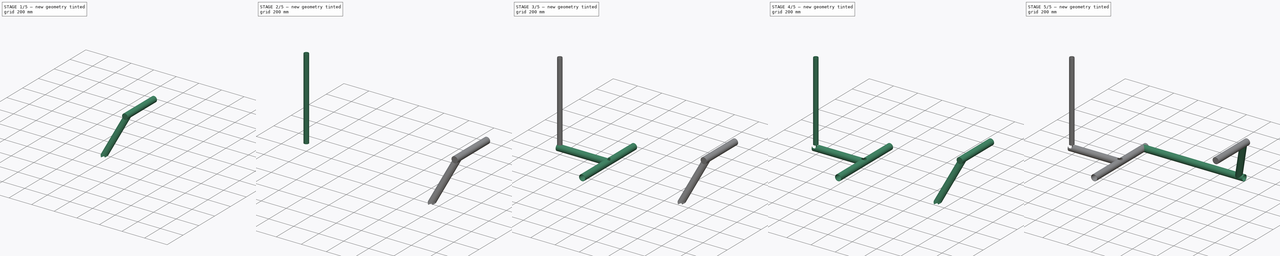
[diagram: build sequence overview — one tinted view per stage of 5, left to right]
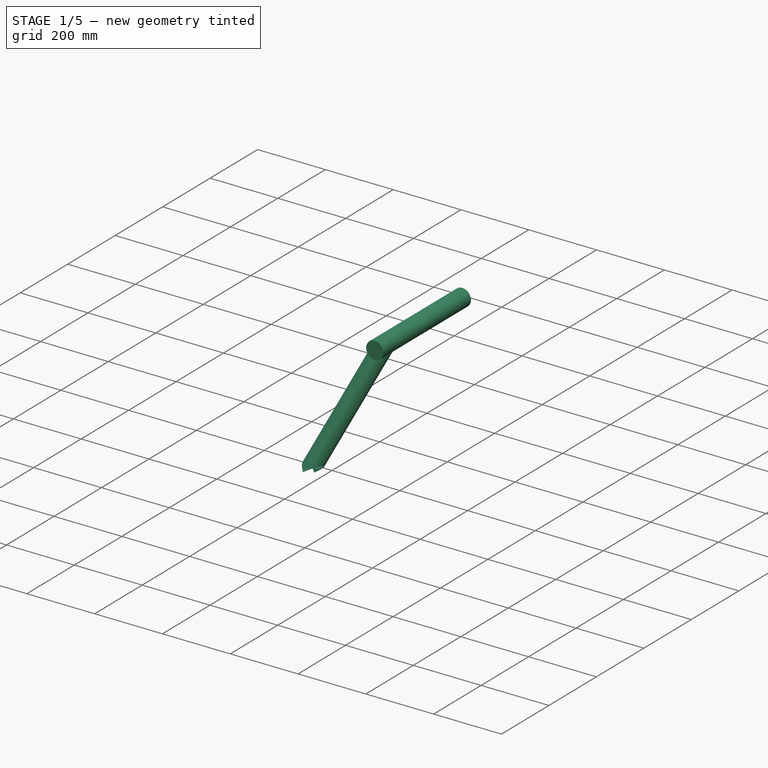
[diagram: stage 1 of 5 — iso view after this stage's code; geometry added in this stage tinted green]
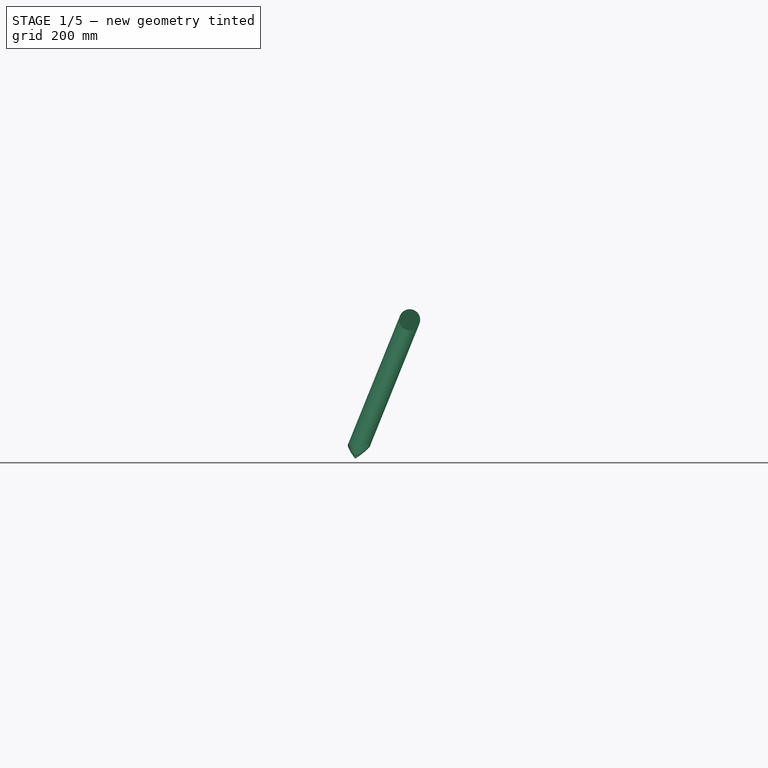
[diagram: stage 1 of 5 — front view after this stage's code; geometry added in this stage tinted green]
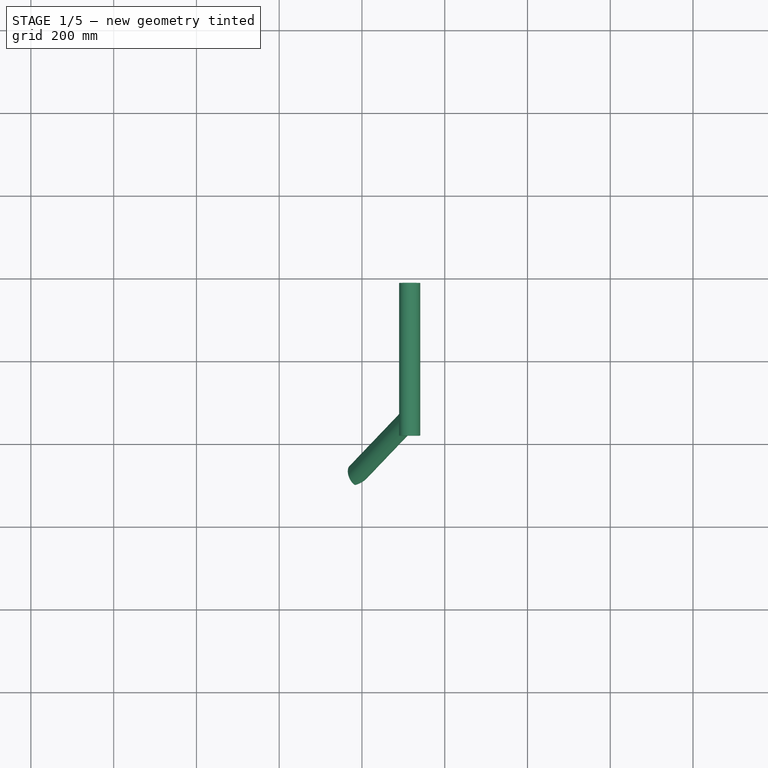
[diagram: stage 1 of 5 — top view after this stage's code; geometry added in this stage tinted green]
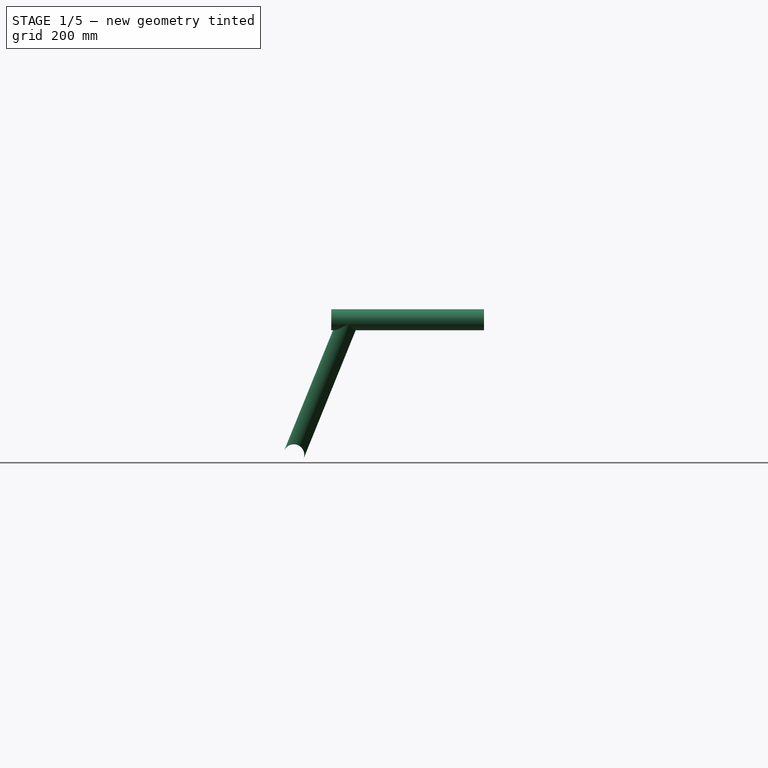
[diagram: stage 1 of 5 — right view after this stage's code; geometry added in this stage tinted green]
FCSTD DOCUMENT  (FreeCAD 0.17R10661 (Git))
Label: cargo_bike
Comment: <copyright redacted>\n\nThis documentation describes Open Hardware and is licensed under the CERN OHL v1.2.  You may redistribute and modify this documentation und... (+281 chars)
License: Other
LicenseURL: http://ohwr.org/cernohl
objects: Sketcher::SketchObject×31, PartDesign::Pocket×14, PartDesign::Body×8, PartDesign::Pad×7, Spreadsheet::Sheet×5, PartDesign::Plane×4, Part::Mirroring×2, PartDesign::Line×1
note: 88 computed .brp shape members not serialized (recipe doc carries the construction recipe); baked Part::Feature solids carry a one-line shape summary decoded from their .brp

FEATURE [PartDesign::Body] Body006  label="front_head_tube"
  Group = -> [Sketch006,Pad004,Sketch,Pocket012]
  Origin = -> Body006Origin
  Placement = pos=(1353.07,0,260.054) rot=(0,-1,0;0.270526rad)
  Tip = -> Pocket012
  expr: Placement.Base.z = Sketch001.Constraints.front_head_tube_posz
  expr: Placement.Base.x = Sketch001.Constraints.front_head_tube_posx
  expr: Placement.Rotation.Angle = 90deg - design_params.front_head_tube_angle
FEATURE [Sketcher::SketchObject] Sketch023
  MapMode = 5
  Placement = pos=(1183.42,-275,-25.4) rot=(0,0,1;0rad)
  Support = -> [XY_Plane005]
  superPlacement = pos=(1183.42,-275,-25.4) rot=(0,0,1;0rad)
  expr: superPlacement.Base.z = -design_params.cargo_tube_diam / 2
  expr: superPlacement.Base.y = -design_params.cargo_width_c2c / 2
  expr: superPlacement.Base.x = Sketch001.Constraints.cargo_front_tubes_bottom_posx
  sketch-geometry (1):
    g0: LineSegment StartX=0 StartY=0 StartZ=0 EndX=100 EndY=100 EndZ=0
  constraints (3):
    c: Coincident(g0,g-1)
    c: DistanceX(g0) = 100
    c: DistanceY(g0) = 100
FEATURE [PartDesign::Plane] DatumPlane
  MapMode = 4
  Placement = pos=(1134.48,-199.6,-25.4) rot=(0.57735,0.57735,0.57735;2.0944rad)
  Support = -> [Sketch023]
FEATURE [Sketcher::SketchObject] Sketch018
  MapMode = 1
  Placement = pos=(1183.42,-275,-25.4) rot=(0.57735,0.57735,0.57735;2.0944rad)
  Support = -> [DatumPlane]
  expr: Placement.Base.y = -design_params.cargo_width_c2c / 2
  expr: Placement.Base.z = -design_params.cargo_tube_diam / 2
  expr: Placement.Base.x = Sketch001.Constraints.cargo_front_tubes_bottom_posx
  expr: Constraints[1] = design_params.cargo_tube_diam / 2
  sketch-geometry (1):
    g0: Circle CenterX=0 CenterY=0 CenterZ=0 NormalX=0 NormalY=0 NormalZ=1 Radius=25.4
  constraints (2):
    c: Coincident(g0,g-1)
    c: Radius(g0) = 25.4
FEATURE [Sketcher::SketchObject] Sketch024
  MapMode = 5
  Placement = pos=(1315.33,-142.5,301.092) rot=(0,0,1;0rad)
  Support = -> [XY_Plane005]
  superPlacement = pos=(1315.33,-142.5,301.092) rot=(0,0,1;0rad)
  expr: Placement.Base.z = Sketch001.Constraints.front_head_tube_center_posz
  expr: Placement.Base.x = Sketch001.Constraints.front_head_tube_center_posx
  expr: superPlacement.Base.y = -design_params.cargo_nose_tube_width_c2c / 2
  expr: superPlacement.Base.z = Sketch001.Constraints.front_head_tube_center_posz
  expr: superPlacement.Base.x = Sketch001.Constraints.front_head_tube_center_posx
  sketch-geometry (1):
    g0: LineSegment StartX=0 StartY=0 StartZ=0 EndX=100 EndY=100 EndZ=0
  constraints (3):
    c: Coincident(g0,g-1)
    c: DistanceX(g0) = 100
    c: DistanceY(g0) = 100
FEATURE [PartDesign::Line] DatumLine001  label="cargo_front_tube_centerline"
  AttacherType = Attacher::AttachEngineLine
  MapMode = 29
  Placement = pos=(1183.42,-275,-25.4) rot=(0.105572,0.255678,0.96098;2.38611rad)
  Support = -> [Sketch023,Sketch024]
FEATURE [PartDesign::Plane] DatumPlane001  label="cargo_front_tube_centerface"
  MapMode = 7
  Placement = pos=(1183.42,-275,-25.4) rot=(0.919576,-0.379702,-0.101023;2.6617rad)
  Support = -> [Sketch023,DatumLine001]
FEATURE [Sketcher::SketchObject] Sketch015
  MapMode = 5
  Placement = pos=(1183.42,-275,-25.4) rot=(0.919576,-0.379702,-0.101023;2.6617rad)
  Support = -> [DatumPlane001]
  expr: Constraints[1] = design_params.cargo_tube_diam / 2
  sketch-geometry (1):
    g0: Circle CenterX=0 CenterY=0 CenterZ=0 NormalX=0 NormalY=0 NormalZ=1 Radius=25.4
  constraints (2):
    c: Coincident(g0,g-1)
    c: Radius(g0) = 25.4
FEATURE [PartDesign::Pad] Pad005
  Length = 800
  Length2 = 100
  Placement = pos=(1183.42,-275,-25.4) rot=(0.919576,-0.379702,-0.101023;2.6617rad)
  Profile = -> Sketch015
  Reversed = true
  Type = 0
FEATURE [Sketcher::SketchObject] Sketch025
  MapMode = 5
  Placement = pos=(1183.42,-275,-25.4) rot=(0.919576,-0.379702,-0.101023;2.6617rad)
  Support = -> [Pad005]
  expr: Constraints[1] = design_params.cargo_tube_diam / 2 - design_params.cargo_tube_wall
  sketch-geometry (1):
    g0: Circle CenterX=0 CenterY=0 CenterZ=0 NormalX=0 NormalY=0 NormalZ=1 Radius=23.749
  constraints (2):
    c: Coincident(g0,g-1)
    c: Radius(g0) = 23.749
FEATURE [PartDesign::Pocket] Pocket013
  BaseFeature = -> Pad005
  Length = 5
  Placement = pos=(1183.42,-275,-25.4) rot=(0.919576,-0.379702,-0.101023;2.6617rad)
  Profile = -> Sketch025
  Type = 1
FEATURE [PartDesign::Pocket] Pocket014
  BaseFeature = -> Pocket013
  Length = 5
  Midplane = true
  Placement = pos=(1183.42,-275,-25.4) rot=(0.919576,-0.379702,-0.101023;2.6617rad)
  Profile = -> Sketch018
  Type = 1
FEATURE [PartDesign::Body] Body003  label="rear_head_tube"
  Group = -> [Sketch005,Pad003,Sketch027,Pocket016]
  Origin = -> Body003Origin
  Placement = pos=(397.787,0,-60.8) rot=(0,0,1;0rad)
  Tip = -> Pocket016
  expr: Placement.Base.z = -Sketch001.Constraints.rear_head_tube_drop
  expr: Placement.Base.x = Sketch001.Constraints.lower_down_tube
FEATURE [Spreadsheet::Sheet] Spreadsheet003  label="References"
  cells = A1=lower_down_tube.stock_length; B1==390.8596mm; A2=lower_down_tube.stock_diameter; B2==50.799999999999997mm; A3=lower_down_tube.cope_0.tool; B3=holesaw; A4=lower_down_tube.cope_0.angle; B4==0rad; A5=lower_down_tube.cope_0.angle_along_circumference; B5==0mm; A6=lower_down_tube.cope_0.pos; B6==-13.0815mm; A7=lower_down_tube.cope_0.holesaw_angle; B7==0rad; A8=lower_down_tube.cope_0.holesaw_following_pos; B8==5.4184999999999999mm; A9=lower_down_tube.cope_0.holesaw_diameter; B9==37mm; A10=lower_down_tube.cope_1.tool; B10=holesaw; A11=lower_down_tube.cope_1.angle; B11==1.5708rad; A12=lower_down_tube.cope_1.angle_along_circumference; B12==39.898200000000003mm; A13=lower_down_tube.cope_1.pos; B13==-13.0815mm; A14=lower_down_tube.cope_1.holesaw_angle; B14==0rad; A15=lower_down_tube.cope_1.holesaw_following_pos; B15==12.3185mm; A16=lower_down_tube.cope_1.holesaw_diameter; B16==50.799999999999997mm; A17=cargo_side_tube_r.stock_length; B17==833.28959999999995mm; A18=cargo_side_tube_r.stock_diameter; B18==50.799999999999997mm; A19=cargo_side_tube_r.cope_0.tool; B19=holesaw; A20=cargo_side_tube_r.cope_0.angle; B20==0rad; A21=cargo_side_tube_r.cope_0.angle_along_circumference; B21==0mm; A22=cargo_side_tube_r.cope_0.pos; B22==-0mm; A23=cargo_side_tube_r.cope_0.holesaw_angle; B23==0rad; A24=cargo_side_tube_r.cope_0.holesaw_following_pos; B24==25.399999999999999mm; A25=cargo_side_tube_r.cope_0.holesaw_diameter; B25==50.799999999999997mm; A26=cargo_front_tube_r.stock_length; B26==376.23599999999999mm; A27=cargo_front_tube_r.stock_diameter; B27==50.799999999999997mm; A28=cargo_front_tube_r.cope_0.tool; B28=holesaw; A29=cargo_front_tube_r.cope_0.angle; B29==0rad; A30=cargo_front_tube_r.cope_0.angle_along_circumference; B30==0mm; A31=cargo_front_tube_r.cope_0.pos; B31==0mm; A32=cargo_front_tube_r.cope_0.holesaw_angle; B32==0.35820000000000002rad; D32=equal 1; A33=cargo_front_tube_r.cope_0.holesaw_following_pos; B33==17.6126mm; A34=cargo_front_tube_r.cope_0.holesaw_diameter; B34==50.799999999999997mm; A35=cargo_front_tube_r.cope_1.tool; B35=holesaw; A36=cargo_front_tube_r.cope_1.angle; B36==-1.4295rad; A37=cargo_front_tube_r.cope_1.angle_along_circumference; B37==-36.308199999999999mm; A38=cargo_front_tube_r.cope_1.pos; B38==376.23599999999999mm; A39=cargo_front_tube_r.cope_1.holesaw_angle; B39==0.3599rad; D39=equal 2; A40=cargo_front_tube_r.cope_1.holesaw_following_pos; B40==358.6549mm; A41=cargo_front_tube_r.cope_1.holesaw_diameter; B41==50.799999999999997mm; A42=cargo_front_tube_l.stock_length; B42==376.23599999999999mm; A43=cargo_front_tube_l.stock_diameter; B43==50.799999999999997mm; A44=cargo_front_tube_l.cope_0.tool; B44=holesaw; A45=cargo_front_tube_l.cope_0.angle; B45==0rad; A46=cargo_front_tube_l.cope_0.angle_along_circumference; B46==0mm; A47=cargo_front_tube_l.cope_0.pos; B47==0mm; A48=cargo_front_tube_l.cope_0.holesaw_angle; B48==0.35820000000000002rad; A49=cargo_front_tube_l.cope_0.holesaw_following_pos; B49==17.6126mm; A50=cargo_front_tube_l.cope_0.holesaw_diameter; B50==50.799999999999997mm; A51=cargo_front_tube_l.cope_1.tool; B51=holesaw; A52=cargo_front_tube_l.cope_1.angle; B52==1.4295rad; A53=cargo_front_tube_l.cope_1.angle_along_circumference; B53==36.308199999999999mm; A54=cargo_front_tube_l.cope_1.pos; B54==376.23599999999999mm; A55=cargo_front_tube_l.cope_1.holesaw_angle; B55==0.3599rad; A56=cargo_front_tube_l.cope_1.holesaw_following_pos; B56==358.6549mm; A57=cargo_front_tube_l.cope_1.holesaw_diameter; B57==50.799999999999997mm; A58=cargo_nose_tube.stock_length; B58==369mm; D58=aim for...; E58=322; A59=cargo_nose_tube.stock_diameter; B59==50.799999999999997mm; A60=front_head_tube.stock_length; B60==110mm; A61=front_head_tube.stock_diameter; B61==37mm
FEATURE [PartDesign::Plane] DatumPlane004  label="cargo_front_tube_centerface_end"
  MapMode = 7
  Placement = pos=(1315.33,-142.5,301.092) rot=(0.919576,-0.379702,-0.101023;2.6617rad)
  Support = -> [Sketch024,DatumLine001]
FEATURE [Sketcher::SketchObject] Sketch028
  MapMode = 5
  Placement = pos=(1315.33,-142.5,301.092) rot=(0.919576,-0.379702,-0.101023;2.6617rad)
  Support = -> [DatumPlane004]
  sketch-geometry (4):
    g0: LineSegment StartX=-236.513 StartY=272.345 StartZ=0 EndX=250.093 EndY=272.345 EndZ=0
    g1: LineSegment StartX=250.093 StartY=272.345 StartZ=0 EndX=250.093 EndY=-285.224 EndZ=0
    g2: LineSegment StartX=250.093 StartY=-285.224 StartZ=0 EndX=-236.513 EndY=-285.224 EndZ=0
    g3: LineSegment StartX=-236.513 StartY=-285.224 StartZ=0 EndX=-236.513 EndY=272.345 EndZ=0
  constraints (12):
    c: Coincident(g0,g1)
    c: Coincident(g1,g2)
    c: Coincident(g2,g3)
    c: Coincident(g3,g0)
    c: Horizontal(g0)
    c: Horizontal(g2)
    c: Vertical(g1)
    c: Vertical(g3)
    c: DistanceX(g1) = 250.093
    c: DistanceY(g1) = -285.224
    c: DistanceX(g0) = -236.513
    c: DistanceY(g0) = 272.345
FEATURE [PartDesign::Pocket] Pocket
  BaseFeature = -> Pocket014
  Length = 5
  Placement = pos=(1183.42,-275,-25.4) rot=(0.919576,-0.379702,-0.101023;2.6617rad)
  Profile = -> Sketch028
  Type = 1
FEATURE [Sketcher::SketchObject] Sketch031  label="cargo_nose_tube_cutout001"
  Placement = pos=(1315.33,0,301.092) rot=(1,0,0;1.5708rad)
  Support = -> [XZ_Plane007]
  expr: Constraints[1] = design_params.cargo_tube_diam / 2
  expr: Placement.Base.z = Sketch001.Constraints.front_head_tube_center_posz
  expr: Placement.Base.x = Sketch001.Constraints.front_head_tube_center_posx
  sketch-geometry (1):
    g0: Circle CenterX=0 CenterY=0 CenterZ=0 NormalX=0 NormalY=0 NormalZ=1 Radius=25.4
  constraints (2):
    c: Coincident(g0,g-1)
    c: Radius(g0) = 25.4
FEATURE [PartDesign::Pad] Pad006
  Length = 369
  Length2 = 100
  Midplane = true
  Placement = pos=(0,0,0) rot=(1,0,0;1.5708rad)
  Profile = -> Sketch031
  Type = 0
  expr: Length = design_params.cargo_nose_tube_width_c2c + 84mm
FEATURE [PartDesign::Body] Body007  label="cargo_nose_tube"
  Group = -> [Sketch031,Pad006]
  Origin = -> Body007Origin
  Tip = -> Pad006
FEATURE [Spreadsheet::Sheet] Spreadsheet004  label="jig_setup"
  cells = A1=bb_drop; B1==Sketch001.Constraints.bb_drop; A2=table_to_nose_bottom; B2==Sketch001.Constraints.front_head_tube_posz + design_params.cargo_tube_diam - design_params.cargo_tube_diam / 2
FEATURE [Sketcher::SketchObject] Sketch032
  MapMode = 5
  Placement = pos=(0,0,0) rot=(0.57735,0.57735,0.57735;2.0944rad)
  Support = -> [YZ_Plane008]
  expr: Constraints[1] = design_params.cargo_tube_diam / 2
  sketch-geometry (17):
    g0: Circle [constr] CenterX=0 CenterY=-46.45 CenterZ=0 NormalX=0 NormalY=0 NormalZ=1 Radius=25.4
    g1: LineSegment [constr] StartX=-34 StartY=19.05 StartZ=0 EndX=34 EndY=19.05 EndZ=0
    g2: LineSegment [constr] StartX=34 StartY=19.05 StartZ=0 EndX=34 EndY=-19.05 EndZ=0
    g3: LineSegment [constr] StartX=34 StartY=-19.05 StartZ=0 EndX=-34 EndY=-19.05 EndZ=0
    g4: LineSegment [constr] StartX=-34 StartY=-19.05 StartZ=0 EndX=-34 EndY=19.05 EndZ=0
    g5: LineSegment StartX=-20.574 StartY=-31.5547 StartZ=0 EndX=-20.574 EndY=-11.651 EndZ=0
    g6: LineSegment StartX=-20.574 StartY=-11.651 StartZ=0 EndX=20.574 EndY=-11.651 EndZ=0
    g7: LineSegment StartX=20.574 StartY=-11.651 StartZ=0 EndX=20.574 EndY=-31.5547 EndZ=0
    g8: LineSegment StartX=22.225 StartY=-33.2057 StartZ=0 EndX=22.225 EndY=-10 EndZ=0
    g9: LineSegment StartX=22.225 StartY=-10 StartZ=0 EndX=-22.225 EndY=-10 EndZ=0
    g10: LineSegment StartX=-22.225 StartY=-10 StartZ=0 EndX=-22.225 EndY=-33.2057 EndZ=0
    g11: LineSegment [constr] StartX=20.574 StartY=-11.651 StartZ=0 EndX=20.574 EndY=-10 EndZ=0
    g12: LineSegment [constr] StartX=0 StartY=-21.05 StartZ=0 EndX=0 EndY=-19.05 EndZ=0
    g13: LineSegment StartX=20.574 StartY=-31.5547 StartZ=0 EndX=22.225 EndY=-33.2057 EndZ=0
    g14: LineSegment StartX=-20.574 StartY=-31.5547 StartZ=0 EndX=-22.225 EndY=-33.2057 EndZ=0
    g15: LineSegment [constr] StartX=20.574 StartY=-11.651 StartZ=0 EndX=22.225 EndY=-11.651 EndZ=0
    g16: ArcOfCircle [constr] CenterX=0 CenterY=-36.5393 CenterZ=0 NormalX=0 NormalY=0 NormalZ=1 Radius=20.671 StartAngle=0.296333 EndAngle=2.84526
  constraints (52):
    c: PointOnObject(g0,g-2)
    c: Radius(g0) = 25.4
    c: Coincident(g1,g2)
    c: Coincident(g2,g3)
    c: Coincident(g3,g4)
    c: Coincident(g4,g1)
    c: Horizontal(g1)
    c: Horizontal(g3)
    c: Vertical(g2)
    c: Vertical(g4)
    c: Symmetric(g1,g1,g-2)
    c: Distance(g1) = 68
    c: Symmetric(g1,g3,g-1)
    c: Distance(g4) = 38.1
    c: Vertical(g5)
    c: Coincident(g6,g5)
    c: Horizontal(g6)
    c: Coincident(g7,g6)
    c: Vertical(g7)
    c: Vertical(g8)
    c: Coincident(g9,g8)
    c: Horizontal(g9)
    c: Coincident(g10,g9)
    c: Vertical(g10)
    c: Symmetric(g5,g7,g-2)
    c: Coincident(g11,g6)
    c: PointOnObject(g11,g9)
    c: Vertical(g11)
    c: PointOnObject(g7,g0)
    c: PointOnObject(g12,g0)
    c: PointOnObject(g12,g3)
    c: Vertical(g12)
    c: Perpendicular(g12,g0) = 1.5708
    c: Distance(g12) = 2
    c: Distance(g9) = 44.45
    c: Distance(g-1,g9) = 10
    c: Coincident(g13,g7)
    c: Coincident(g13,g8)
    c: Angle(g13) = -0.785398
    c: Coincident(g14,g5)
    c: Coincident(g14,g10)
    c: Symmetric(g10,g8,g-2)
    c: Coincident(g15,g6)
    c: PointOnObject(g15,g8)
    c: Horizontal(g15)
    c: Equal(g15,g11)
    c: Distance(g11) = 1.651
    c: Distance(g8) = 23.2057
    c: DistanceY(g-1,g12) = -21.05
    c: PointOnObject(g16,g-2)
    c: PointOnObject(g16,g0)
    c: PointOnObject(g16,g0)
FEATURE [Sketcher::SketchObject] Sketch033
  MapMode = 5
  Support = -> [XY_Plane008]
  sketch-geometry (29):
    g0: LineSegment StartX=847.29 StartY=332.428 StartZ=0 EndX=923.49 EndY=332.428 EndZ=0
    g1: LineSegment StartX=923.49 StartY=332.428 StartZ=0 EndX=923.49 EndY=-332.428 EndZ=0
    g2: LineSegment StartX=923.49 StartY=-332.428 StartZ=0 EndX=847.29 EndY=-332.428 EndZ=0
    g3: LineSegment StartX=847.29 StartY=-332.428 StartZ=0 EndX=847.29 EndY=332.428 EndZ=0
    g4: LineSegment StartX=923.49 StartY=38.1 StartZ=0 EndX=1400 EndY=38.1 EndZ=0
    g5: LineSegment StartX=1400 StartY=38.1 StartZ=0 EndX=1400 EndY=-38.1 EndZ=0
    g6: LineSegment StartX=1400 StartY=-38.1 StartZ=0 EndX=923.49 EndY=-38.1 EndZ=0
    g7: LineSegment StartX=847.29 StartY=312.428 StartZ=0 EndX=662.19 EndY=312.428 EndZ=0
    g8: LineSegment StartX=662.19 StartY=312.428 StartZ=0 EndX=662.19 EndY=236.228 EndZ=0
    g9: LineSegment StartX=662.19 StartY=236.228 StartZ=0 EndX=847.29 EndY=236.228 EndZ=0
    g10: LineSegment StartX=923.49 StartY=312.428 StartZ=0 EndX=1108.59 EndY=312.428 EndZ=0
    g11: LineSegment StartX=1108.59 StartY=312.428 StartZ=0 EndX=1108.59 EndY=236.228 EndZ=0
    g12: LineSegment StartX=1108.59 StartY=236.228 StartZ=0 EndX=923.49 EndY=236.228 EndZ=0
    g13: GeomPoint [constr] X=885.39 Y=274.328 Z=0
    g14: LineSegment [constr] StartX=923.49 StartY=160.028 StartZ=0 EndX=961.59 EndY=236.228 EndZ=0
    g15: LineSegment [constr] StartX=971.59 StartY=312.428 StartZ=0 EndX=971.59 EndY=236.228 EndZ=0
    g16: LineSegment [constr] StartX=1098.59 StartY=312.428 StartZ=0 EndX=1098.59 EndY=236.228 EndZ=0
    g17: LineSegment StartX=1016.04 StartY=236.228 StartZ=0 EndX=1016.04 EndY=198.128 EndZ=0
    g18: LineSegment StartX=1016.04 StartY=198.128 StartZ=0 EndX=1054.14 EndY=198.128 EndZ=0
    g19: LineSegment StartX=1054.14 StartY=198.128 StartZ=0 EndX=1054.14 EndY=236.228 EndZ=0
    g20: GeomPoint [constr] X=1035.09 Y=236.228 Z=0
    g21: LineSegment [constr] StartX=1016.04 StartY=198.128 StartZ=0 EndX=977.94 EndY=236.228 EndZ=0
    g22: LineSegment [constr] StartX=1054.14 StartY=198.128 StartZ=0 EndX=1092.24 EndY=236.228 EndZ=0
    g23: LineSegment [constr] StartX=923.49 StartY=114.3 StartZ=0 EndX=999.69 EndY=38.1 EndZ=0
    g24: LineSegment [constr] StartX=923.49 StartY=160.028 StartZ=0 EndX=847.29 EndY=160.028 EndZ=0
    g25: LineSegment [constr] StartX=847.29 StartY=160.028 StartZ=0 EndX=809.19 EndY=236.228 EndZ=0
    g26: LineSegment [constr] StartX=847.29 StartY=76.2 StartZ=0 EndX=923.49 EndY=76.2 EndZ=0
    g27: LineSegment [constr] StartX=923.49 StartY=76.2 StartZ=0 EndX=999.69 EndY=38.1 EndZ=0
    g28: LineSegment [constr] StartX=961.59 StartY=236.228 StartZ=0 EndX=923.49 EndY=198.128 EndZ=0
  constraints (95):
    c: Coincident(g0,g1)
    c: Coincident(g1,g2)
    c: Coincident(g2,g3)
    c: Coincident(g3,g0)
    c: Horizontal(g0)
    c: Horizontal(g2)
    c: Vertical(g1)
    c: Vertical(g3)
    c: Coincident(g4,g5)
    c: Coincident(g5,g6)
    c: Horizontal(g4)
    c: Horizontal(g6)
    c: Vertical(g5)
    c: PointOnObject(g4,g1)
    c: PointOnObject(g6,g1)
    c: Coincident(g7,g8)
    c: Coincident(g8,g9)
    c: Horizontal(g7)
    c: Horizontal(g9)
    c: Vertical(g8)
    c: PointOnObject(g7,g3)
    c: PointOnObject(g9,g3)
    c: Coincident(g10,g11)
    c: Coincident(g11,g12)
    c: Horizontal(g10)
    c: Horizontal(g12)
    c: Vertical(g11)
    c: PointOnObject(g10,g1)
    c: PointOnObject(g12,g1)
    c: Distance(g8) = 76.2
    c: Equal(g8,g11)
    c: Equal(g0,g8)
    c: Equal(g8,g5)
    c: DistanceY(g7,g10) = 0
    c: Symmetric(g0,g2,g-1)
    c: Symmetric(g9,g10,g13)
    c: Distance(g7,g0) = 20
    c: Equal(g10,g7)
    c: PointOnObject(g14,g1)
    c: PointOnObject(g14,g12)
    c: Distance(g14,g12) = 38.1
    c: Distance(g14,g12) = 76.2
    c: PointOnObject(g15,g10)
    c: PointOnObject(g15,g12)
    c: Vertical(g15)
    c: PointOnObject(g16,g10)
    c: PointOnObject(g16,g12)
    c: Vertical(g16)
    c: Distance(g15,g16) = 127
    c: Distance(g15,g14) = 10
    c: Distance(g11,g16) = 10
    c: DistanceX(g10) = 1108.59
    c: Symmetric(g4,g6,g-1)
    c: DistanceX(g4) = 1400
    c: Distance(g6) = 476.51
    c: Distance(g3) = 664.855
    c: Distance(g7) = 185.1
    c: Distance(g7,g10) = 446.4
    c: Coincident(g17,g18)
    c: Coincident(g18,g19)
    c: Horizontal(g18)
    c: Vertical(g17)
    c: Vertical(g19)
    c: Equal(g18,g19)
    c: PointOnObject(g17,g12)
    c: PointOnObject(g19,g12)
    c: Symmetric(g17,g19,g20)
    c: Symmetric(g16,g15,g20)
    c: Distance(g18) = 38.1
    c: Coincident(g21,g17)
    c: PointOnObject(g21,g12)
    c: Distance(g21,g17) = 38.1
    c: Coincident(g22,g18)
    c: PointOnObject(g22,g12)
    c: Distance(g22,g19) = 38.1
    c: PointOnObject(g23,g1)
    c: PointOnObject(g23,g4)
    c: Distance(g23,g4) = 76.2
    c: Distance(g23,g4) = 76.2
    c: Coincident(g24,g14)
    c: PointOnObject(g24,g3)
    c: Horizontal(g24)
    c: Coincident(g25,g24)
    c: PointOnObject(g25,g9)
    c: Distance(g25,g9) = 38.1
    c: PointOnObject(g26,g3)
    c: PointOnObject(g26,g1)
    c: Horizontal(g26)
    c: Coincident(g27,g26)
    c: Coincident(g27,g23)
    c: Distance(g26,g4) = 38.1
    c: DistanceY(g-1,g13) = 274.328
    c: Coincident(g28,g14)
    c: PointOnObject(g28,g1)
    c: Distance(g28,g12) = 38.1
FEATURE [Sketcher::SketchObject] Sketch034
  MapMode = 5
  Support = -> [XY_Plane008]
  sketch-geometry (52):
    g0: LineSegment StartX=1324.05 StartY=-38.1 StartZ=0 EndX=429.141 EndY=-38.1 EndZ=0
    g1: LineSegment StartX=429.141 StartY=-38.1 StartZ=0 EndX=429.141 EndY=38.1 EndZ=0
    g2: LineSegment StartX=429.141 StartY=38.1 StartZ=0 EndX=1324.05 EndY=38.1 EndZ=0
    g3: LineSegment StartX=1324.05 StartY=38.1 StartZ=0 EndX=1324.05 EndY=-38.1 EndZ=0
    g4: LineSegment StartX=861.751 StartY=362.703 StartZ=0 EndX=937.951 EndY=362.703 EndZ=0
    g5: LineSegment StartX=937.951 StartY=362.703 StartZ=0 EndX=937.951 EndY=-362.703 EndZ=0
    g6: LineSegment StartX=937.951 StartY=-362.703 StartZ=0 EndX=861.751 EndY=-362.703 EndZ=0
    g7: LineSegment StartX=861.751 StartY=-362.703 StartZ=0 EndX=861.751 EndY=362.703 EndZ=0
    g8: LineSegment StartX=683.001 StartY=311.903 StartZ=0 EndX=1116.7 EndY=311.903 EndZ=0
    g9: LineSegment StartX=1116.7 StartY=311.903 StartZ=0 EndX=1116.7 EndY=235.703 EndZ=0
    g10: LineSegment StartX=1116.7 StartY=235.703 StartZ=0 EndX=683.001 EndY=235.703 EndZ=0
    g11: LineSegment StartX=683.001 StartY=235.703 StartZ=0 EndX=683.001 EndY=311.903 EndZ=0
    g12: LineSegment [constr] StartX=937.951 StartY=197.603 StartZ=0 EndX=976.051 EndY=235.703 EndZ=0
    g13: GeomPoint [constr] X=937.951 Y=235.703 Z=0
    g14: LineSegment [constr] StartX=979.701 StartY=311.903 StartZ=0 EndX=979.701 EndY=235.703 EndZ=0
    g15: LineSegment [constr] StartX=1106.7 StartY=311.903 StartZ=0 EndX=1106.7 EndY=235.703 EndZ=0
    g16: Circle [constr] CenterX=918.901 CenterY=292.853 CenterZ=0 NormalX=0 NormalY=0 NormalZ=1 Radius=16
    g17: Circle [constr] CenterX=880.801 CenterY=254.753 CenterZ=0 NormalX=0 NormalY=0 NormalZ=1 Radius=16
    g18: LineSegment [constr] StartX=1062.25 StartY=235.703 StartZ=0 EndX=1062.25 EndY=197.603 EndZ=0
    g19: LineSegment [constr] StartX=1062.25 StartY=197.603 StartZ=0 EndX=1024.15 EndY=197.603 EndZ=0
    g20: LineSegment [constr] StartX=1024.15 StartY=197.603 StartZ=0 EndX=1024.15 EndY=235.703 EndZ=0
    g21: LineSegment [constr] StartX=1024.15 StartY=197.603 StartZ=0 EndX=986.051 EndY=235.703 EndZ=0
    g22: LineSegment [constr] StartX=1062.25 StartY=197.603 StartZ=0 EndX=1100.35 EndY=235.703 EndZ=0
    g23: LineSegment [constr] StartX=1043.2 StartY=311.903 StartZ=0 EndX=1043.2 EndY=235.703 EndZ=0
    g24: LineSegment [constr] StartX=775.551 StartY=235.703 StartZ=0 EndX=775.551 EndY=197.603 EndZ=0
    g25: LineSegment [constr] StartX=775.551 StartY=197.603 StartZ=0 EndX=737.451 EndY=197.603 EndZ=0
    g26: LineSegment [constr] StartX=737.451 StartY=197.603 StartZ=0 EndX=737.451 EndY=235.703 EndZ=0
    g27: LineSegment [constr] StartX=775.551 StartY=197.603 StartZ=0 EndX=813.651 EndY=235.703 EndZ=0
    g28: LineSegment [constr] StartX=737.451 StartY=197.603 StartZ=0 EndX=699.351 EndY=235.703 EndZ=0
    g29: LineSegment [constr] StartX=861.751 StartY=197.603 StartZ=0 EndX=823.651 EndY=235.703 EndZ=0
    g30: LineSegment [constr] StartX=693.001 StartY=311.903 StartZ=0 EndX=693.001 EndY=235.703 EndZ=0
    g31: LineSegment [constr] StartX=820.001 StartY=311.903 StartZ=0 EndX=820.001 EndY=235.703 EndZ=0
    g32: LineSegment [constr] StartX=756.501 StartY=311.903 StartZ=0 EndX=756.501 EndY=235.703 EndZ=0
    g33: LineSegment StartX=311.191 StartY=38.1 StartZ=0 EndX=-573.512 EndY=38.1 EndZ=0
    g34: LineSegment StartX=-573.512 StartY=38.1 StartZ=0 EndX=-573.512 EndY=-38.1 EndZ=0
    g35: LineSegment StartX=-573.512 StartY=-38.1 StartZ=0 EndX=311.191 EndY=-38.1 EndZ=0
    g36: LineSegment StartX=311.191 StartY=216.85 StartZ=0 EndX=387.391 EndY=216.85 EndZ=0
    g37: LineSegment StartX=387.391 StartY=216.85 StartZ=0 EndX=387.391 EndY=-216.85 EndZ=0
    g38: LineSegment StartX=387.391 StartY=-216.85 StartZ=0 EndX=311.191 EndY=-216.85 EndZ=0
    g39: LineSegment StartX=311.191 StartY=-216.85 StartZ=0 EndX=311.191 EndY=216.85 EndZ=0
    g40: LineSegment StartX=184.191 StartY=38.1 StartZ=0 EndX=556.141 EndY=38.1 EndZ=0
    g41: LineSegment StartX=556.141 StartY=38.1 StartZ=0 EndX=556.141 EndY=-38.1 EndZ=0
    g42: LineSegment StartX=556.141 StartY=-38.1 StartZ=0 EndX=184.191 EndY=-38.1 EndZ=0
    g43: LineSegment StartX=184.191 StartY=-38.1 StartZ=0 EndX=184.191 EndY=38.1 EndZ=0
    g44: LineSegment [constr] StartX=861.751 StartY=0 StartZ=0 EndX=693.001 EndY=0 EndZ=0
    g45: LineSegment [constr] StartX=387.391 StartY=0 StartZ=0 EndX=556.141 EndY=0 EndZ=0
    g46: LineSegment [constr] StartX=1199.75 StartY=38.1 StartZ=0 EndX=1199.75 EndY=-38.1 EndZ=0
    g47: LineSegment [constr] StartX=1237.85 StartY=38.1 StartZ=0 EndX=1237.85 EndY=-38.1 EndZ=0
    g48: LineSegment [constr] StartX=1263.25 StartY=38.1 StartZ=0 EndX=1263.25 EndY=-38.927 EndZ=0
    g49: LineSegment [constr] StartX=1314.05 StartY=38.1 StartZ=0 EndX=1314.05 EndY=-38.1 EndZ=0
    g50: LineSegment [constr] StartX=-459.212 StartY=38.1 StartZ=0 EndX=-459.212 EndY=-38.1 EndZ=0
    g51: LineSegment [constr] StartX=-497.312 StartY=38.1 StartZ=0 EndX=-497.312 EndY=-38.1 EndZ=0
  constraints (172):
    c: Coincident(g0,g1)
    c: Coincident(g1,g2)
    c: Coincident(g2,g3)
    c: Coincident(g3,g0)
    c: Horizontal(g0)
    c: Horizontal(g2)
    c: Vertical(g1)
    c: Vertical(g3)
    c: Coincident(g4,g5)
    c: Coincident(g5,g6)
    c: Coincident(g6,g7)
    c: Coincident(g7,g4)
    c: Horizontal(g4)
    c: Horizontal(g6)
    c: Vertical(g5)
    c: Vertical(g7)
    c: Coincident(g8,g9)
    c: Coincident(g9,g10)
    c: Coincident(g10,g11)
    c: Coincident(g11,g8)
    c: Horizontal(g8)
    c: Horizontal(g10)
    c: Vertical(g9)
    c: Vertical(g11)
    c: Equal(g11,g3)
    c: Equal(g4,g3)
    c: Symmetric(g2,g0,g-1)
    c: Distance(g3) = 76.2
    c: Distance(g4,g8) = 50.8
    c: Symmetric(g4,g6,g-1)
    c: PointOnObject(g12,g10)
    c: PointOnObject(g12,g5)
    c: PointOnObject(g13,g5)
    c: PointOnObject(g13,g10)
    c: Distance(g13,g12) = 38.1
    c: Distance(g13,g12) = 38.1
    c: PointOnObject(g14,g8)
    c: Vertical(g14)
    c: PointOnObject(g15,g8)
    c: PointOnObject(g15,g10)
    c: Vertical(g15)
    c: PointOnObject(g14,g10)
    c: Distance(g14,g15) = 127
    c: Distance(g15,g8) = 10
    c: Radius(g16) = 16
    c: Distance(g16,g8) = 19.05
    c: Distance(g16,g5) = 19.05
    c: Radius(g17) = 16
    c: Distance(g17,g10) = 19.05
    c: Distance(g17,g7) = 19.05
    c: Coincident(g18,g19)
    c: Coincident(g19,g20)
    c: Horizontal(g19)
    c: Vertical(g18)
    c: Vertical(g20)
    c: PointOnObject(g20,g10)
    c: PointOnObject(g18,g10)
    c: Equal(g20,g19)
    c: Distance(g19) = 38.1
    c: Coincident(g21,g19)
    c: PointOnObject(g21,g10)
    c: Distance(g20,g21) = 38.1
    c: Coincident(g22,g18)
    c: PointOnObject(g22,g10)
    c: Distance(g22,g18) = 38.1
    c: Distance(g21,g12) = 10
    c: PointOnObject(g23,g8)
    c: PointOnObject(g23,g10)
    c: Symmetric(g14,g15,g23)
    c: Symmetric(g20,g18,g23)
    c: Coincident(g24,g25)
    c: Coincident(g25,g26)
    c: Horizontal(g25)
    c: Vertical(g24)
    c: Vertical(g26)
    c: Equal(g26,g25)
    c: PointOnObject(g24,g10)
    c: PointOnObject(g26,g10)
    c: Coincident(g27,g24)
    c: PointOnObject(g27,g10)
    c: Coincident(g28,g25)
    c: PointOnObject(g28,g10)
    c: Distance(g28,g26) = 38.1
    c: Distance(g24,g27) = 38.1
    c: Distance(g25) = 38.1
    c: PointOnObject(g29,g7)
    c: PointOnObject(g29,g10)
    c: Distance(g29,g7) = 38.1
    c: Distance(g29,g10) = 38.1
    c: Distance(g29,g27) = 10
    c: PointOnObject(g30,g8)
    c: PointOnObject(g30,g10)
    c: Vertical(g30)
    c: PointOnObject(g31,g8)
    c: PointOnObject(g31,g10)
    c: Vertical(g31)
    c: PointOnObject(g32,g8)
    c: PointOnObject(g32,g10)
    c: Symmetric(g30,g31,g32)
    c: Symmetric(g26,g24,g32)
    c: Distance(g8,g30) = 10
    c: Distance(g30,g31) = 127
    c: Distance(g8) = 433.7
    c: Distance(g7) = 725.406
    c: Coincident(g33,g34)
    c: Coincident(g34,g35)
    c: Horizontal(g33)
    c: Horizontal(g35)
    c: Vertical(g34)
    c: Symmetric(g34,g33,g-1)
    c: Coincident(g36,g37)
    c: Coincident(g37,g38)
    c: Coincident(g38,g39)
    c: Coincident(g39,g36)
    c: Horizontal(g36)
    c: Horizontal(g38)
    c: Vertical(g37)
    c: Vertical(g39)
    c: Equal(g36,g3)
    c: Symmetric(g36,g38,g-1)
    c: Equal(g3,g34)
    c: PointOnObject(g33,g39)
    c: PointOnObject(g35,g39)
    c: Coincident(g40,g41)
    c: Coincident(g41,g42)
    c: Coincident(g42,g43)
    c: Coincident(g43,g40)
    c: Horizontal(g40)
    c: Horizontal(g42)
    c: Vertical(g41)
    c: Vertical(g43)
    c: PointOnObject(g40,g33)
    c: PointOnObject(g42,g35)
    c: Distance(g40,g1) = 127
    c: Horizontal(g44)
    c: PointOnObject(g44,g-1)
    c: PointOnObject(g44,g7)
    c: DistanceX(g44,g30) = 0
    c: PointOnObject(g45,g37)
    c: Horizontal(g45)
    c: PointOnObject(g45,g-1)
    c: Equal(g45,g44)
    c: PointOnObject(g45,g41)
    c: Distance(g42,g35) = 127
    c: Distance(g0) = 894.904
    c: Distance(g40) = 371.95
    c: Distance(g35) = 884.704
    c: Distance(g37) = 433.7
    c: Equal(g8,g37)
    c: PointOnObject(g46,g2)
    c: PointOnObject(g46,g0)
    c: Vertical(g46)
    c: PointOnObject(g47,g2)
    c: PointOnObject(g47,g0)
    c: Vertical(g47)
    c: Distance(g46,g47) = 38.1
    c: PointOnObject(g48,g2)
    c: Vertical(g48)
    c: Distance(g48,g47) = 25.4
    c: PointOnObject(g49,g2)
    c: PointOnObject(g49,g0)
    c: Vertical(g49)
    c: Distance(g49,g47) = 76.2
    c: Distance(g49,g2) = 10
    c: PointOnObject(g50,g33)
    c: PointOnObject(g50,g35)
    c: Vertical(g50)
    c: PointOnObject(g51,g33)
    c: PointOnObject(g51,g35)
    c: Vertical(g51)
    c: Distance(g50,g51) = 38.1
    c: Distance(g51,g33) = 76.2
FEATURE [PartDesign::Body] Body008  label="bb_dropper"
  Group = -> [Sketch032,Sketch033,Sketch034]
  Origin = -> Body008Origin
FEATURE [Sketcher::SketchObject] Sketch035  label="stage_002"
  Placement = pos=(0,0,0) rot=(1,0,0;1.5708rad)
  expr: Constraints[17] = 180 - 71
  expr: Constraints[22] = upcycled_fork.steerer_length
  expr: Constraints[126] = design_params.cargo_tube_diam / 2
  expr: Constraints[25] = upcycled_frame.chain_stays
  expr: Constraints[134] = upcycled_fork.front_head_tube_OD / 2
  expr: Constraints[29] = upcycled_frame.seat_tube_c_to_tt
  expr: Constraints.rear_tire_radius = upcycled_frame.wheel_size_iso / 2 + upcycled_frame.rear_tire_width
  expr: Constraints[24] = upcycled_frame.seat_stays
  expr: Constraints[31] = upcycled_frame.dt_ht_to_ss_st
  expr: Constraints[118] = design_params.cargo_tube_diam / 2
  expr: Constraints[26] = upcycled_frame.down_tube
  expr: Constraints[28] = upcycled_frame.top_tube
  expr: Constraints[21] = upcycled_fork.axle_to_crown
  expr: Constraints.Constraint61 = upcycled_frame.seat_tube_extension
  expr: Constraints[27] = upcycled_frame.head_tube_c_to_c
  expr: Constraints[30] = upcycled_frame.dt_ht_to_dropout
  expr: Constraints.Constraint21 = design_params.front_rim_iso_diam / 2 + design_params.front_tire_width
  expr: Constraints[23] = 180deg - design_params.front_head_tube_angle
  expr: Constraints[101] = design_params.cargo_tube_diam / 2
  expr: Constraints[53] = design_params.rear_head_tube_od / 2
  sketch-geometry (57):
    g0: Circle CenterX=-432.212 CenterY=26.1064 CenterZ=0 NormalX=0 NormalY=0 NormalZ=1 Radius=330.3
    g1: Circle CenterX=1475.02 CenterY=-50.3936 CenterZ=0 NormalX=0 NormalY=0 NormalZ=1 Radius=253.8
    g2: LineSegment StartX=0 StartY=0 StartZ=0 EndX=-181.837 EndY=528.093 EndZ=0
    g3: LineSegment StartX=-762.512 StartY=-304.194 StartZ=0 EndX=1728.82 EndY=-304.194 EndZ=0
    g4: LineSegment StartX=0 StartY=0 StartZ=0 EndX=-432.212 EndY=26.1064 EndZ=0
    g5: LineSegment StartX=-432.212 StartY=26.1064 StartZ=0 EndX=-178.581 EndY=518.638 EndZ=0
    g6: LineSegment StartX=-177.435 StartY=515.308 StartZ=0 EndX=422.489 EndY=524.895 EndZ=0
    g7: LineSegment StartX=422.489 StartY=524.895 StartZ=0 EndX=456.122 EndY=444.659 EndZ=0
    g8: LineSegment StartX=456.122 StartY=444.659 StartZ=0 EndX=0 EndY=0 EndZ=0
    g9: LineSegment StartX=386.941 StartY=579.2 StartZ=0 EndX=386.941 EndY=-120.8 EndZ=0
    g10: LineSegment StartX=0 StartY=0 StartZ=0 EndX=1155.44 EndY=0 EndZ=0
    g11: LineSegment StartX=1475.02 StartY=-50.3936 StartZ=0 EndX=1346.99 EndY=242.878 EndZ=0
    g12: LineSegment StartX=1346.99 StartY=242.878 StartZ=0 EndX=1303.43 EndY=399.95 EndZ=0
    g13: LineSegment StartX=1155.44 StartY=0 StartZ=0 EndX=1280.93 EndY=310.607 EndZ=0
    g14: GeomPoint [constr] X=386.941 Y=-50.8 Z=0
    g15: LineSegment StartX=1328.04 StartY=291.577 StartZ=0 EndX=1202.54 EndY=-19.03 EndZ=0
    g16: LineSegment StartX=1202.54 StartY=-50.8 StartZ=0 EndX=386.941 EndY=-50.8 EndZ=0
    g17: LineSegment [constr] StartX=1155.44 StartY=0 StartZ=0 EndX=1155.44 EndY=-50.8 EndZ=0
    g18: LineSegment [constr] StartX=1155.44 StartY=0 StartZ=0 EndX=1202.54 EndY=-19.03 EndZ=0
    g19: GeomPoint [constr] X=405.441 Y=0 Z=0
    g20: LineSegment [constr] StartX=1178.99 StartY=-9.51501 StartZ=0 EndX=1304.48 EndY=301.092 EndZ=0
    g21: GeomPoint [constr] X=386.941 Y=524.327 Z=0
    g22: GeomPoint [constr] X=386.941 Y=377.217 Z=0
    g23: GeomPoint [constr] X=386.941 Y=0 Z=0
    g24: GeomPoint [constr] X=386.941 Y=-80.8 Z=0
    g25: GeomPoint [constr] X=386.941 Y=-100.8 Z=0
    g26: LineSegment StartX=386.941 StartY=-100.8 StartZ=0 EndX=1222.54 EndY=-100.8 EndZ=0
    g27: LineSegment StartX=1222.54 StartY=-100.8 StartZ=0 EndX=1435.01 EndY=41.2538 EndZ=0
    g28: LineSegment [constr] StartX=1728.82 StartY=-50.3936 StartZ=0 EndX=1728.82 EndY=-304.194 EndZ=0
    g29: LineSegment [constr] StartX=-762.512 StartY=26.1064 StartZ=0 EndX=-762.512 EndY=-304.194 EndZ=0
    g30: LineSegment [constr] StartX=1475.02 StartY=-50.3936 StartZ=0 EndX=1728.82 EndY=-50.3936 EndZ=0
    g31: LineSegment [constr] StartX=-432.212 StartY=26.1064 StartZ=0 EndX=-762.512 EndY=26.1064 EndZ=0
    g32: GeomPoint [constr] X=386.941 Y=-70.8 Z=0
    g33: LineSegment StartX=386.941 StartY=579.2 StartZ=0 EndX=386.941 EndY=639.2 EndZ=0
    g34: GeomPoint [constr] X=1344.31 Y=252.515 Z=0
    g35: GeomPoint [constr] X=1314.92 Y=358.514 Z=0
    g36: LineSegment [constr] StartX=1239.7 StartY=44.6816 StartZ=0 EndX=1182.78 EndY=67.6763 EndZ=0
    g37: LineSegment StartX=1202.54 StartY=-19.03 StartZ=0 EndX=1202.54 EndY=-50.8 EndZ=0
    g38: LineSegment StartX=1178.99 StartY=-9.51501 StartZ=0 EndX=1172.57 EndY=-25.4 EndZ=0
    g39: GeomPoint [constr] X=1178.99 Y=-9.51501 Z=0
    g40: LineSegment StartX=1210.23 StartY=0 StartZ=0 EndX=1220.23 EndY=0 EndZ=0
    g41: LineSegment [constr] StartX=1210.23 StartY=0 StartZ=0 EndX=1155.44 EndY=0 EndZ=0
    g42: LineSegment StartX=1220.23 StartY=0 StartZ=0 EndX=1220.23 EndY=-50.8 EndZ=0
    g43: LineSegment StartX=1220.23 StartY=-50.8 StartZ=0 EndX=1202.54 EndY=-50.8 EndZ=0
    g44: Circle CenterX=1304.48 CenterY=301.092 CenterZ=0 NormalX=0 NormalY=0 NormalZ=1 Radius=25.4
    g45: LineSegment StartX=1304.48 StartY=301.092 StartZ=0 EndX=1328.96 EndY=307.879 EndZ=0
    g46: GeomPoint [constr] X=1335.75 Y=283.403 Z=0
    g47: LineSegment [constr] StartX=1304.48 StartY=301.092 StartZ=0 EndX=1304.48 EndY=275.692 EndZ=0
    g48: LineSegment [constr] StartX=1344.31 StartY=252.515 StartZ=0 EndX=1326.49 EndY=247.571 EndZ=0
    g49: LineSegment [constr] StartX=1346.99 StartY=242.878 StartZ=0 EndX=1431.65 EndY=-62.4193 EndZ=0
    g50: LineSegment [constr] StartX=1431.65 StartY=-62.4193 StartZ=0 EndX=1475.02 EndY=-50.3936 EndZ=0
    g51: LineSegment [constr] StartX=1431.65 StartY=-62.4193 StartZ=0 EndX=1498.7 EndY=-304.194 EndZ=0
    g52: LineSegment [constr] StartX=1475.02 StartY=-50.3936 StartZ=0 EndX=1475.02 EndY=-304.194 EndZ=0
    g53: GeomPoint [constr] X=1373.47 Y=182.208 Z=0
    g54: LineSegment StartX=422.489 StartY=524.895 StartZ=0 EndX=387.696 EndY=607.898 EndZ=0
    g55: LineSegment StartX=387.696 StartY=607.898 StartZ=0 EndX=465.726 EndY=625.543 EndZ=0
    g56: LineSegment StartX=386.941 StartY=639.435 StartZ=0 EndX=465.726 EndY=625.543 EndZ=0
  constraints (177):
    c: Coincident(g2,g-1)
    c: Horizontal(g3)
    c: Tangent(g1,g3)
    c: Tangent(g3,g0)
    c: Coincident(g4,g-1)
    c: Coincident(g4,g0)
    c: Coincident(g5,g0)
    c: PointOnObject(g5,g2)
    c: PointOnObject(g6,g2)
    c: Coincident(g7,g6)
    c: Coincident(g8,g7)
    c: Coincident(g8,g-1)
    c: Vertical(g9)
    c: Coincident(g10,g-1)
    c: Horizontal(g10)
    c: Coincident(g11,g1)
    c: Coincident(g12,g11)
    c: Angle(g2) = 1.90241
    c: Coincident(g13,g10)
    c: Radius(g0) = 330.3  'rear_tire_radius'
    c: Radius(g1) = 253.8  'Constraint21'
    c: Distance(g11) = 320
    c: Distance(g12) = 163
    c: Angle(g12) = 1.84132
    c: Distance(g5) = 554
    c: Distance(g4) = 433
    c: Distance(g8) = 637
    c: Distance(g7) = 87
    c: Distance(g6) = 600
    c: Distance(g-1,g6) = 545
    c: Distance(g7,g0) = 982
    c: Distance(g5,g7) = 639
    c: Distance(g14,g10) = 50.8
    c: PointOnObject(g14,g9)
    c: Coincident(g16,g14)
    c: Horizontal(g16)
    c: Coincident(g17,g10)
    c: PointOnObject(g17,g16)
    c: Vertical(g17)
    c: Coincident(g18,g10)
    c: PointOnObject(g18,g15)
    c: Perpendicular(g15,g18)
    c: PointOnObject(g19,g10)
    c: Distance(g19,g10) = 750
    c: PointOnObject(g20,g18)
    c: Symmetric(g18,g10,g20)  'c57'
    c: Distance(g5,g2) = 10  'Constraint61'
    c: PointOnObject(g21,g6)  'Constraint60'
    c: PointOnObject(g21,g9)  'Constraint59'
    c: PointOnObject(g22,g8)  'Constraint58'
    c: PointOnObject(g22,g9)  'Constraint57'
    c: PointOnObject(g23,g9)  'Constraint55'
    c: PointOnObject(g23,g10)  'Constraint54'
    c: Distance(g23,g19) = 18.5
    c: PointOnObject(g24,g9)
    c: PointOnObject(g25,g9)
    c: Symmetric(g9,g24,g25)
    c: Coincident(g26,g25)
    c: Horizontal(g26)
    c: Coincident(g27,g26)
    c: PointOnObject(g27,g11)
    c: Vertical(g28)
    c: Coincident(g28,g3)
    c: Tangent(g29,g0)
    c: PointOnObject(g28,g1)
    c: Coincident(g3,g29)
    c: Coincident(g30,g1)
    c: Coincident(g30,g28)
    c: Horizontal(g30)
    c: Coincident(g31,g0)
    c: Coincident(g31,g29)
    c: Horizontal(g31)
    c: Vertical(g29)
    c: Distance(g22,g-1) = 540.385  'down_tube_new'
    c: Distance(g21,g6) = 564.448  'top_tube_new'
    c: PointOnObject(g32,g9)  'Constraint90'
    c: Distance(g32,g9) = 650  'rear_head_tube'
    c: Coincident(g33,g9)  'Constraint91'
    c: Vertical(g33)  'Constraint88'
    c: Distance(g33,g9) = 760  'rear_steer_tube'
    c: Angle(g13,g10) = 1.95477  'angle_cargo_xz'
    c: Distance(g32,g10) = 70.8  'rear_head_tube_drop'
    c: PointOnObject(g34,g12)  'Constraint96'
    c: Distance(g34,g11) = 10  'Constraint89'
    c: PointOnObject(g35,g12)  'Constraint87'
    c: Distance(g35,g34) = 110  'front_head_tube'
    c: PointOnObject(g36,g1)  'Constraint100'
    c: PointOnObject(g36,g13)  'Constraint98'
    c: Perpendicular(g13,g36)  'Constraint95'
    c: Perpendicular(g1,g36)  'Constraint94'
    c: Coincident(g15,g18)  'Constraint102'
    c: Coincident(g37,g15)  'Constraint92'
    c: Vertical(g37)
    c: Coincident(g37,g16)
    c: DistanceX(g16,g26) = 20
    c: DistanceX(g34) = 1344.31  'front_head_tube_posx'
    c: DistanceY(g34) = 252.515  'front_head_tube_posz'
    c: Coincident(g39,g38)  'Constraint115'
    c: Coincident(g20,g38)  'Constraint103'
    c: Parallel(g20,g38)
    c: Equal(g18,g17)
    c: Distance(g38,g16) = 25.4
    c: DistanceX(g38) = 1172.57  'cargo_front_tubes_bottom_posx'
    c: DistanceX(g20) = 1304.48  'front_head_tube_center_posx'
    c: DistanceY(g20) = 301.092  'front_head_tube_center_posz'
    c: PointOnObject(g40,g15)  'Constraint109'
    c: Horizontal(g40)
    c: Coincident(g41,g40)
    c: Coincident(g41,g10)
    c: Horizontal(g41)
    c: Distance(g40) = 10
    c: Coincident(g42,g40)
    c: Vertical(g42)
    c: Coincident(g43,g42)
    c: Coincident(g43,g16)
    c: Horizontal(g43)
    c: Distance(g14,g42) = 833.29  'cargo_side_tubes'
    c: Coincident(g44,g20)
    c: Radius(g44) = 25.4
    c: PointOnObject(g13,g44)
    c: PointOnObject(g15,g44)
    c: Distance(g20,g12) = 25.4
    c: Coincident(g45,g20)
    c: PointOnObject(g45,g12)
    c: Perpendicular(g12,g45)
    c: PointOnObject(g46,g12)
    c: Distance(g46,g45) = 25.4
    c: Distance(g46,g34) = 32.0545
    c: DistanceY(g-1,g0) = 26.1064  'bb_drop'
    c: Coincident(g47,g20)
    c: PointOnObject(g47,g44)
    c: Vertical(g47)
    c: Coincident(g48,g34)
    c: Perpendicular(g12,g48)
    c: Distance(g48) = 18.5
    c: DistanceY(g42,g48) = 298.371
    c: Distance(g20) = 335
    c: Coincident(g49,g11)
    c: Parallel(g49,g12)
    c: Coincident(g50,g49)
    c: Coincident(g1,g50)
    c: Perpendicular(g49,g50)
    c: Distance(g50) = 45  'fork_rake'
    c: DistanceY(g32,g14) = 20  'Constraint149'
    c: DistanceY(g24,g32) = 10
    c: DistanceY(g9,g24) = 40
    c: Distance(g1,g27) = 100
    c: DistanceX(g0,g19) = 837.653
    c: Distance(g3) = 2491.33
    c: DistanceX(g10,g20) = 149.044
    c: Coincident(g51,g49)
    c: PointOnObject(g51,g3)
    c: Parallel(g51,g49)
    c: Coincident(g52,g1)
    c: PointOnObject(g52,g3)
    c: Vertical(g52)
    c: Distance(g52,g51) = 23.6866
    c: PointOnObject(g53,g1)
    c: PointOnObject(g53,g11)
    c: Distance(g53,g11) = 66.2
    c: DistanceY(g38,g20) = 326.492  'nose_tube_to_side_tube_c2c'
    c: Distance(g20,g9) = 917.544  'nose_tube_to_rear_head_tube_c2c'
    c: Coincident(g54,g6)
    c: Coincident(g55,g54)
    c: Parallel(g54,g7)
    c: Angle(g54,g55) = 1.39626
    c: Distance(g54) = 90
    c: Distance(g55) = 80
    c: DistanceY(g33,g33) = 60
    c: PointOnObject(g56,g33)
    c: Angle(g33,g56) = 1.39626
    c: Distance(g56) = 80
    c: Coincident(g56,g55)
    c: DistanceX(g-1,g23) = 386.941
    c: Perpendicular(g20,g36)
    c: Distance(g26) = 835.601
    c: Distance(g27) = 255.58
FEATURE [Sketcher::SketchObject] Sketch036
  MapMode = 3
  Placement = pos=(0,0,0) rot=(1,0,0;3.14159rad)
  Support = -> [Sketch001]
FEATURE [Sketcher::SketchObject] Sketch037
  Placement = pos=(0,0,0) rot=(-1,0,0;4.71239rad)
  expr: Constraints[0] = design_params.front_rim_iso_diam / 2 + design_params.front_tire_width
  expr: Constraints[1] = stage_1.Constraints.front_axle_wrt_linkage_x
  expr: Constraints[6] = upcycled_fork.axle_to_crown
  expr: Constraints[2] = stage_1.Constraints.front_axle_wrt_linkage_y
  sketch-geometry (19):
    g0: Circle CenterX=1085.99 CenterY=47.9456 CenterZ=0 NormalX=0 NormalY=0 NormalZ=1 Radius=253.8
    g1: LineSegment StartX=1085.99 StartY=47.9456 StartZ=0 EndX=958.361 EndY=341.394 EndZ=0
    g2: LineSegment StartX=958.361 StartY=341.394 StartZ=0 EndX=1044.72 EndY=29.9985 EndZ=0
    g3: LineSegment StartX=1044.72 StartY=29.9985 StartZ=0 EndX=1085.99 EndY=47.9456 EndZ=0
    g4: Ellipse CenterX=1065.35 CenterY=38.972 CenterZ=0 NormalX=0 NormalY=0 NormalZ=1 MajorRadius=253.8 MinorRadius=125 AngleXU=1.84132
    g5: LineSegment [constr] StartX=997.527 StartY=283.541 StartZ=0 EndX=1133.18 EndY=-205.597 EndZ=0
    g6: LineSegment [constr] StartX=944.898 StartY=5.56721 StartZ=0 EndX=1185.81 EndY=72.3768 EndZ=0
    g7: LineSegment StartX=1038.13 StartY=157.989 StartZ=0 EndX=996.86 EndY=140.042 EndZ=0
    g8: LineSegment StartX=996.86 StartY=140.042 StartZ=0 EndX=836.755 EndY=0 EndZ=0
    g9: LineSegment [constr] StartX=1085.99 StartY=301.746 StartZ=0 EndX=1085.99 EndY=-205.854 EndZ=0
    g10: GeomPoint [constr] X=962.989 Y=110.415 Z=0
    g11: GeomPoint [constr] X=870.626 Y=29.6267 Z=0
    g12: LineSegment StartX=944.898 StartY=5.56721 StartZ=0 EndX=0 EndY=0 EndZ=0
    g13: GeomPoint [constr] X=899.899 Y=5.30208 Z=0
    g14: GeomPoint [constr] X=44.9992 Y=0.265129 Z=0
    g15: Circle CenterX=1065.35 CenterY=38.972 CenterZ=0 NormalX=0 NormalY=0 NormalZ=1 Radius=125
    g16: LineSegment StartX=899.899 StartY=5.30208 StartZ=0 EndX=899.899 EndY=-86.028 EndZ=0
    g17: LineSegment StartX=899.899 StartY=-86.028 StartZ=0 EndX=1065.35 EndY=-86.028 EndZ=0
    g18: LineSegment StartX=899.899 StartY=-86.028 StartZ=0 EndX=44.9992 EndY=0.265129 EndZ=0
  constraints (51):
    c: Radius(g0) = 253.8
    c: DistanceX(g-1,g0) = 1085.99
    c: DistanceY(g-1,g0) = 47.9456
    c: Coincident(g2,g1)
    c: Perpendicular(g1,g3)
    c: Angle(g2,g-1) = 1.30027
    c: Distance(g1) = 320
    c: Distance(g3) = 45
    c: InternalAlignment(g5,g4)
    c: InternalAlignment(g6,g4)
    c: PointOnObject(g7,g1)
    c: Perpendicular(g7,g1)
    c: Distance(g7) = 45
    c: Coincident(g8,g7)
    c: PointOnObject(g8,g0)
    c: PointOnObject(g8,g-1)
    c: Distance(g7,g0) = 120
    c: Coincident(g0,g1)
    c: Coincident(g0,g3)
    c: Coincident(g2,g3)
    c: Distance(g6) = 250
    c: PointOnObject(g9,g0)
    c: PointOnObject(g9,g0)
    c: Vertical(g9)
    c: PointOnObject(g0,g9)
    c: Equal(g9,g5)
    c: Parallel(g5,g2)
    c: PointOnObject(g4,g3)
    c: Symmetric(g2,g0,g4)
    c: PointOnObject(g10,g8)
    c: Distance(g10,g7) = 45
    c: PointOnObject(g11,g8)
    c: Distance(g11,g8) = 45
    c: Distance(g11,g10) = 122.709
    c: Coincident(g12,g6)
    c: Coincident(g12,g-1)
    c: PointOnObject(g13,g12)
    c: Distance(g13,g6) = 45
    c: PointOnObject(g14,g12)
    c: Distance(g-1,g14) = 45
    c: Coincident(g15,g4)
    c: PointOnObject(g6,g15)
    c: Coincident(g16,g13)
    c: Vertical(g16)
    c: Coincident(g17,g16)
    c: Horizontal(g17)
    c: Coincident(g18,g14)
    c: Coincident(g16,g18)
    c: PointOnObject(g17,g15)
    c: Distance(g18) = 859.244
    c: Tangent(g17,g15) = -1.5708
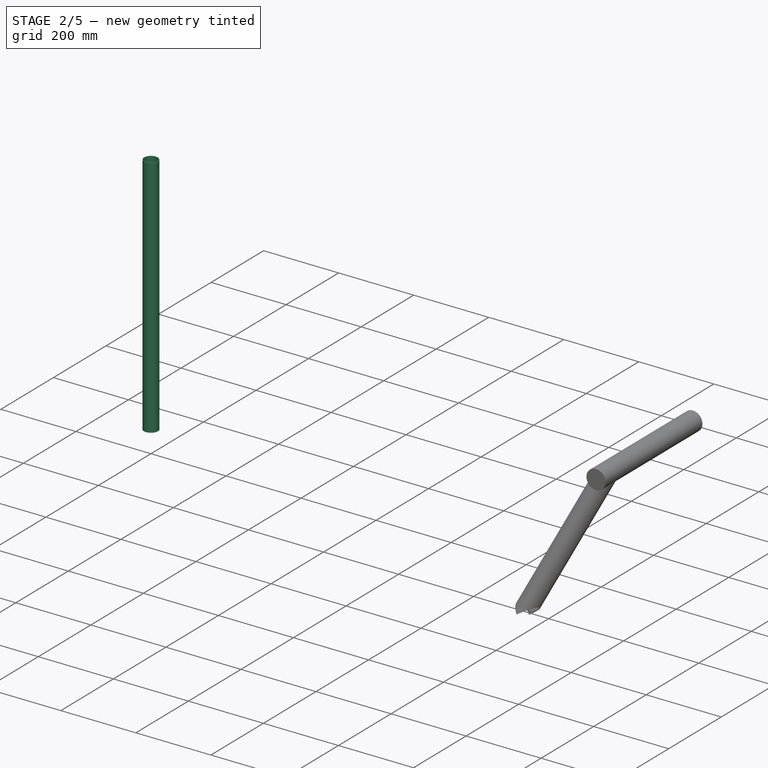
[diagram: stage 2 of 5 — iso view after this stage's code; geometry added in this stage tinted green]
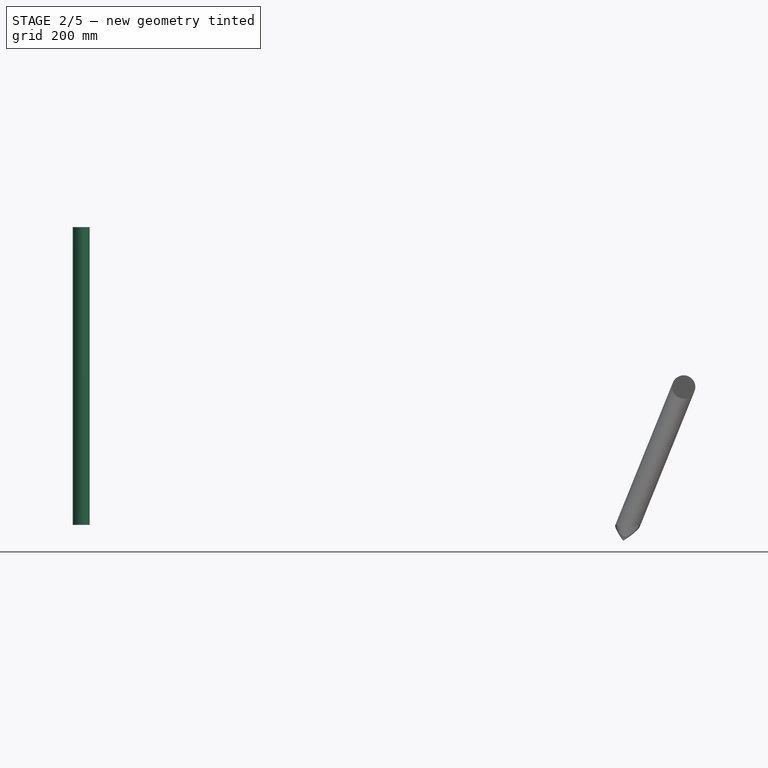
[diagram: stage 2 of 5 — front view after this stage's code; geometry added in this stage tinted green]
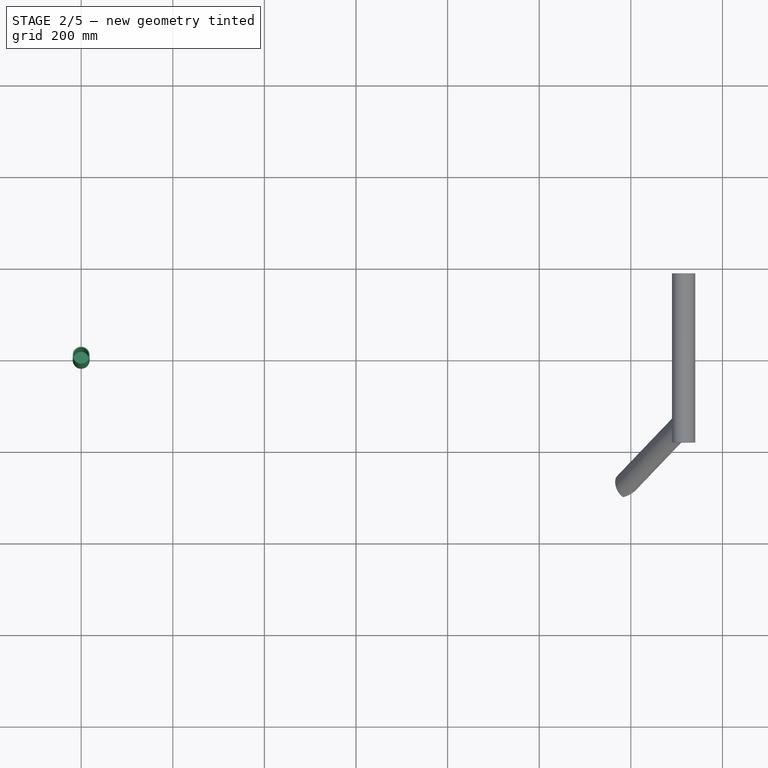
[diagram: stage 2 of 5 — top view after this stage's code; geometry added in this stage tinted green]
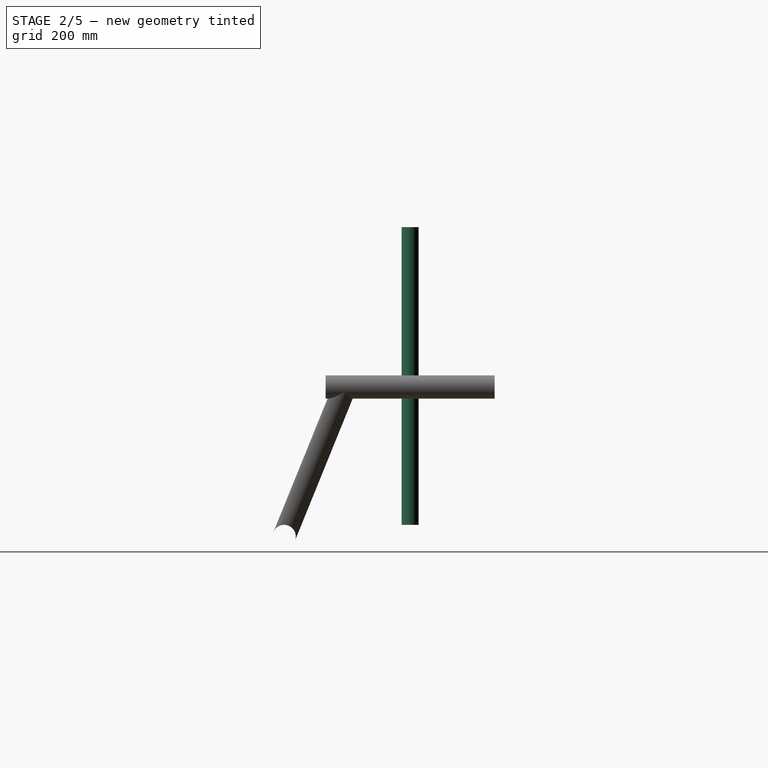
[diagram: stage 2 of 5 — right view after this stage's code; geometry added in this stage tinted green]
FEATURE [Sketcher::SketchObject] Sketch005
  MapMode = 5
  Support = -> [XY_Plane003]
  expr: Constraints[1] = design_params.rear_head_tube_od / 2
  sketch-geometry (1):
    g0: Circle CenterX=0 CenterY=0 CenterZ=0 NormalX=0 NormalY=0 NormalZ=1 Radius=18.5
  constraints (2):
    c: Coincident(g0,g-1)
    c: Radius(g0) = 18.5
FEATURE [PartDesign::Pad] Pad003
  Length = 650
  Length2 = 100
  Profile = -> Sketch005
  Type = 0
  expr: Length = Sketch001.Constraints.rear_head_tube
FEATURE [Sketcher::SketchObject] Sketch006
  MapMode = 5
  Support = -> [XY_Plane006]
  expr: Constraints[1] = upcycled_fork.front_head_tube_OD / 2
  sketch-geometry (1):
    g0: Circle CenterX=0 CenterY=0 CenterZ=0 NormalX=0 NormalY=0 NormalZ=1 Radius=18.5
  constraints (2):
    c: Coincident(g0,g-1)
    c: Radius(g0) = 18.5
FEATURE [PartDesign::Pad] Pad004
  Length = 110
  Length2 = 100
  Profile = -> Sketch006
  Type = 0
  expr: Length = Sketch001.Constraints.front_head_tube
FEATURE [PartDesign::Plane] DatumPlane002
  MapMode = 1
  Placement = pos=(1315.33,-142.5,301.092) rot=(0,0,1;0rad)
  Support = -> [Sketch024]
FEATURE [Sketcher::SketchObject] Sketch027
  MapMode = 5
  Placement = pos=(0,0,650) rot=(0,0,1;0rad)
  Support = -> [Pad003]
  expr: Constraints[1] = design_params.rear_head_tube_id / 2
  sketch-geometry (1):
    g0: Circle CenterX=0 CenterY=0 CenterZ=0 NormalX=0 NormalY=0 NormalZ=1 Radius=16.65
  constraints (2):
    c: Coincident(g0,g-1)
    c: Radius(g0) = 16.65
FEATURE [PartDesign::Pocket] Pocket016
  BaseFeature = -> Pad003
  Length = 5
  Profile = -> Sketch027
  Type = 1
FEATURE [Sketcher::SketchObject] Sketch030  label="cargo_nose_tube_cutout"
  Placement = pos=(1315.33,0,301.092) rot=(1,0,0;1.5708rad)
  Support = -> [XZ_Plane005]
  expr: Constraints[1] = design_params.cargo_tube_diam / 2
  expr: Placement.Base.z = Sketch001.Constraints.front_head_tube_center_posz
  expr: Placement.Base.x = Sketch001.Constraints.front_head_tube_center_posx
  sketch-geometry (1):
    g0: Circle CenterX=0 CenterY=0 CenterZ=0 NormalX=0 NormalY=0 NormalZ=1 Radius=25.4
  constraints (2):
    c: Coincident(g0,g-1)
    c: Radius(g0) = 25.4
FEATURE [PartDesign::Pocket] Pocket017
  BaseFeature = -> Pocket
  Length = 5
  Placement = pos=(1183.42,-275,-25.4) rot=(0.919576,-0.379702,-0.101023;2.6617rad)
  Profile = -> Sketch030
  Reversed = true
  Type = 1
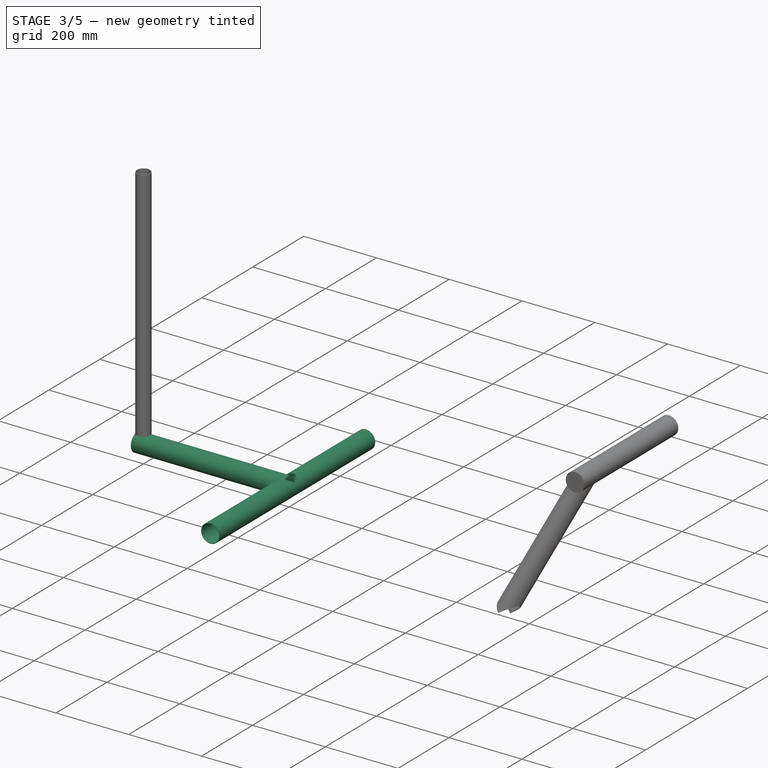
[diagram: stage 3 of 5 — iso view after this stage's code; geometry added in this stage tinted green]
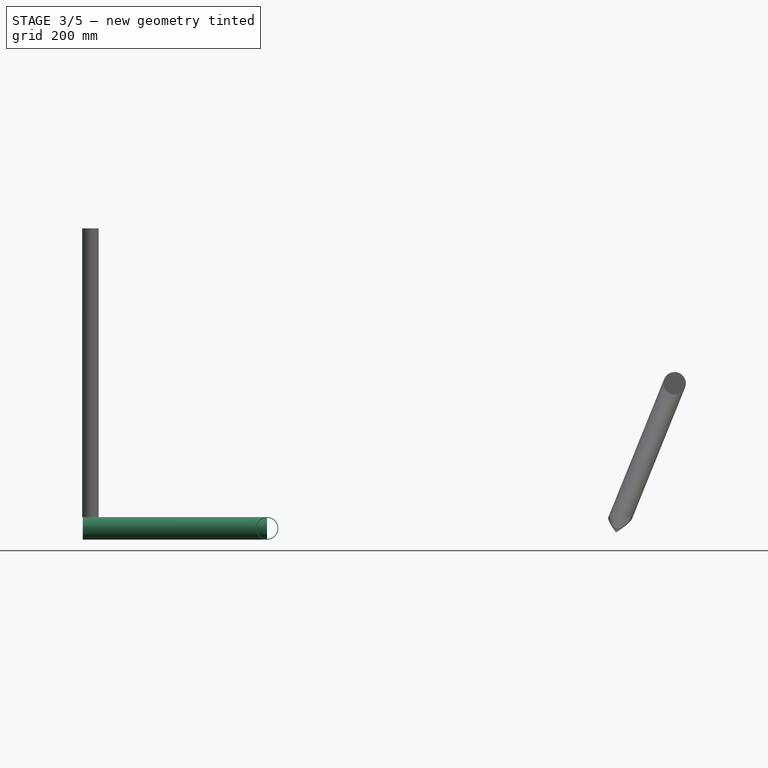
[diagram: stage 3 of 5 — front view after this stage's code; geometry added in this stage tinted green]
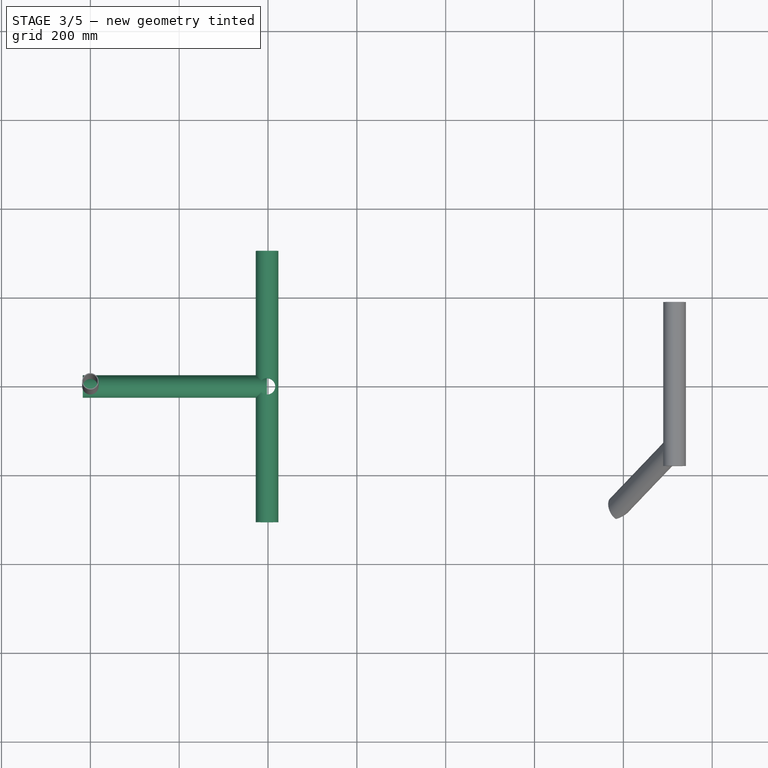
[diagram: stage 3 of 5 — top view after this stage's code; geometry added in this stage tinted green]
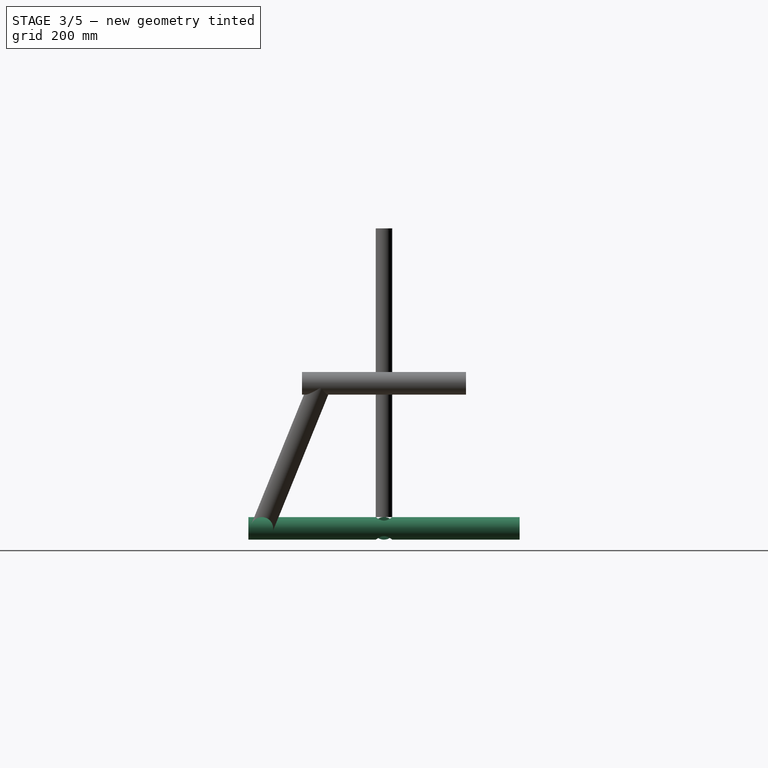
[diagram: stage 3 of 5 — right view after this stage's code; geometry added in this stage tinted green]
FEATURE [Spreadsheet::Sheet] Spreadsheet  label="upcycled_frame"
  cells = A1=wheel_size_iso; B1(wheel_size_iso)==559mm; C1=26" == 559; A2=rear_tire_width; B2(rear_tire_width)==2in; C2=maximum tire size supported by frame; A3=chain_stays; B3(chain_stays)==433mm; A4=seat_stays; B4(seat_stays)==554mm; A5=down_tube; B5(down_tube)==637mm; A6=top_tube; B6(top_tube)==600mm; A7=seat_tube_c_to_tt; B7(seat_tube_c_to_tt)==545mm; A8=seat_tube_c_to_ss; B8(seat_tube_c_to_ss)=475; C8=OBSOLETED; A9=down_tube_diam; B9(down_tube_diam)==31.800000000000001mm; A10=seat_tube_diam; B10(seat_tube_diam)==28.600000000000001mm; A11=seat_tube_extension; B11(seat_tube_extension)==10mm; C11=amt of seat tube above SS; A12=head_tube_c_to_c; B12(head_tube_c_to_c)==87mm; A13=dt_ht_to_dropout; B13(dt_ht_to_dropout)==982mm; C13=diagnoal distance from downtube/headtube junction to the center of the dropouts; A14=dt_ht_to_ss_st; B14(dt_ht_to_ss_st)==639mm; C14=diagonal distance from the downtube/headtube junction to the seatstay/seattube junction
FEATURE [Spreadsheet::Sheet] Spreadsheet001  label="upcycled_fork"
  cells = A1=axle_to_crown; B1(axle_to_crown)==320mm; C1=normally 310 mm; A2=steerer_length; B2(steerer_length)==163mm; A3=steerer_blade_angle; B3(steerer_blade_angle)==180mm - 4mm; C3=OBSOLETE; A4=steerer_diam; B4(steerer_diam)==28.600000000000001mm; C4=1" = 25.4mm, and 1 1/8" = 28.6mm; A5=front_head_tube_ID; B5(front_head_tube_ID)==B4 == 25.399999999999999mm ? 29.699999999999999mm : 33.799999999999997mm; C5=DO NOT CHANGE; A6=front_head_tube_OD; B6(front_head_tube_OD)==B4 == 25.399999999999999mm ? 31.699999999999999mm : 37mm; C6=DO NOT CHANGE
FEATURE [Spreadsheet::Sheet] Spreadsheet002  label="design_params"
  cells = A1=front_rim_iso_diam; B1(front_rim_iso_diam)==406mm; A2=front_tire_width; B2(front_tire_width)==2in; A3=cargo_length; B3(cargo_length)==750mm; A4=cargo_tube_diam; B4(cargo_tube_diam)==2in; A5=cargo_width; B5(cargo_width)==cargo_width_c2c + cargo_tube_diam; A6=cargo_width_c2c; B6(cargo_width_c2c)==550mm; A7=front_head_tube_angle; B7(front_head_tube_angle)==74.5deg; C7=normally 74.5 deg; A8=seat_tube_angle; B8(seat_tube_angle)==72deg; A9=cargo_tube_wall; B9(cargo_tube_wall)==0.065000000000000002in; A10=rear_head_tube_od; B10(rear_head_tube_od)==37mm; A11=rear_head_tube_id; B11(rear_head_tube_id)==33.299999999999997mm; A12=cargo_nose_tube_width_c2c; B12(cargo_nose_tube_width_c2c)==285mm
FEATURE [Sketcher::SketchObject] Sketch001  label="stage_1"
  Placement = pos=(0,0,0) rot=(1,0,0;1.5708rad)
  expr: Constraints[22] = upcycled_fork.steerer_length
  expr: Constraints[25] = upcycled_frame.chain_stays
  expr: Constraints[125] = design_params.cargo_tube_diam / 2
  expr: Constraints[23] = 180deg - design_params.front_head_tube_angle
  expr: Constraints[133] = upcycled_fork.front_head_tube_OD / 2
  expr: Constraints.rear_tire_radius = upcycled_frame.wheel_size_iso / 2 + upcycled_frame.rear_tire_width
  expr: Constraints[29] = upcycled_frame.seat_tube_c_to_tt
  expr: Constraints[24] = upcycled_frame.seat_stays
  expr: Constraints[31] = upcycled_frame.dt_ht_to_ss_st
  expr: Constraints[117] = design_params.cargo_tube_diam / 2
  expr: Constraints[17] = 180 - 72
  expr: Constraints[27] = upcycled_frame.head_tube_c_to_c
  expr: Constraints[30] = upcycled_frame.dt_ht_to_dropout
  expr: Constraints[55] = design_params.rear_head_tube_od / 2
  expr: Constraints[100] = design_params.cargo_tube_diam / 2
  expr: Constraints.Constraint21 = design_params.front_rim_iso_diam / 2 + upcycled_frame.rear_tire_width
  expr: Constraints[28] = upcycled_frame.top_tube
  expr: Constraints[26] = upcycled_frame.down_tube
  expr: Constraints[21] = upcycled_fork.axle_to_crown
  expr: Constraints.Constraint61 = upcycled_frame.seat_tube_extension
  sketch-geometry (55):
    g0: Circle CenterX=-431.691 CenterY=33.6456 CenterZ=0 NormalX=0 NormalY=0 NormalZ=1 Radius=330.3
    g1: Circle CenterX=1483.77 CenterY=-42.8544 CenterZ=0 NormalX=0 NormalY=0 NormalZ=1 Radius=253.8
    g2: LineSegment StartX=0 StartY=0 StartZ=0 EndX=-172.593 EndY=531.186 EndZ=0
    g3: LineSegment StartX=-761.991 StartY=-296.654 StartZ=0 EndX=1737.57 EndY=-296.654 EndZ=0
    g4: LineSegment StartX=0 StartY=0 StartZ=0 EndX=-431.691 EndY=33.6456 EndZ=0
    g5: LineSegment StartX=-431.691 StartY=33.6456 StartZ=0 EndX=-169.503 EndY=521.676 EndZ=0
    g6: LineSegment StartX=-168.414 StartY=518.326 StartZ=0 EndX=431.585 EndY=517.442 EndZ=0
    g7: LineSegment StartX=431.585 StartY=517.442 StartZ=0 EndX=463.813 EndY=436.631 EndZ=0
    g8: LineSegment StartX=463.813 StartY=436.631 StartZ=0 EndX=0 EndY=0 EndZ=0
    g9: LineSegment StartX=397.787 StartY=589.2 StartZ=0 EndX=397.787 EndY=-110.8 EndZ=0
    g10: LineSegment StartX=0 StartY=0 StartZ=0 EndX=1166.29 EndY=0 EndZ=0
    g11: LineSegment StartX=1483.77 StartY=-42.8544 StartZ=0 EndX=1355.74 EndY=250.417 EndZ=0
    g12: LineSegment StartX=1355.74 StartY=250.417 StartZ=0 EndX=1312.18 EndY=407.489 EndZ=0
    g13: LineSegment StartX=1166.29 StartY=0 StartZ=0 EndX=1291.78 EndY=310.607 EndZ=0
    g14: GeomPoint [constr] X=397.787 Y=-50.8 Z=0
    g15: LineSegment StartX=1338.88 StartY=291.577 StartZ=0 EndX=1213.39 EndY=-19.03 EndZ=0
    g16: LineSegment StartX=1213.39 StartY=-50.8 StartZ=0 EndX=397.787 EndY=-50.8 EndZ=0
    g17: LineSegment [constr] StartX=1166.29 StartY=0 StartZ=0 EndX=1166.29 EndY=-50.8 EndZ=0
    g18: LineSegment [constr] StartX=1166.29 StartY=0 StartZ=0 EndX=1213.39 EndY=-19.03 EndZ=0
    g19: GeomPoint [constr] X=416.287 Y=0 Z=0
    g20: LineSegment [constr] StartX=1189.84 StartY=-9.51501 StartZ=0 EndX=1315.33 EndY=301.092 EndZ=0
    g21: GeomPoint [constr] X=397.787 Y=517.492 Z=0
    g22: GeomPoint [constr] X=397.787 Y=374.475 Z=0
    g23: GeomPoint [constr] X=397.787 Y=0 Z=0
    g24: GeomPoint [constr] X=397.787 Y=-70.8 Z=0
    g25: GeomPoint [constr] X=397.787 Y=-90.8 Z=0
    g26: LineSegment [constr] StartX=1737.57 StartY=-42.8544 StartZ=0 EndX=1737.57 EndY=-296.654 EndZ=0
    g27: LineSegment [constr] StartX=-761.991 StartY=33.6456 StartZ=0 EndX=-761.991 EndY=-296.654 EndZ=0
    g28: LineSegment [constr] StartX=1483.77 StartY=-42.8544 StartZ=0 EndX=1737.57 EndY=-42.8544 EndZ=0
    g29: LineSegment [constr] StartX=-431.691 StartY=33.6456 StartZ=0 EndX=-761.991 EndY=33.6456 EndZ=0
    g30: GeomPoint [constr] X=397.787 Y=-60.8 Z=0
    g31: LineSegment StartX=397.787 StartY=589.2 StartZ=0 EndX=397.787 EndY=649.2 EndZ=0
    g32: GeomPoint [constr] X=1353.07 Y=260.054 Z=0
    g33: GeomPoint [constr] X=1323.67 Y=366.053 Z=0
    g34: LineSegment [constr] StartX=1248.45 StartY=52.2207 StartZ=0 EndX=1195.96 EndY=73.4313 EndZ=0
    g35: LineSegment StartX=1213.39 StartY=-19.03 StartZ=0 EndX=1213.39 EndY=-50.8 EndZ=0
    g36: LineSegment StartX=1189.84 StartY=-9.51501 StartZ=0 EndX=1183.42 EndY=-25.4 EndZ=0
    g37: GeomPoint [constr] X=1189.84 Y=-9.51501 Z=0
    g38: LineSegment StartX=1221.08 StartY=0 StartZ=0 EndX=1231.08 EndY=0 EndZ=0
    g39: LineSegment [constr] StartX=1221.08 StartY=0 StartZ=0 EndX=1166.29 EndY=0 EndZ=0
    g40: LineSegment StartX=1231.08 StartY=0 StartZ=0 EndX=1231.08 EndY=-50.8 EndZ=0
    g41: LineSegment StartX=1231.08 StartY=-50.8 StartZ=0 EndX=1213.39 EndY=-50.8 EndZ=0
    g42: Circle CenterX=1315.33 CenterY=301.092 CenterZ=0 NormalX=0 NormalY=0 NormalZ=1 Radius=25.4
    g43: LineSegment StartX=1315.33 StartY=301.092 StartZ=0 EndX=1339.81 EndY=307.879 EndZ=0
    g44: GeomPoint [constr] X=1346.6 Y=283.403 Z=0
    g45: LineSegment [constr] StartX=1315.33 StartY=301.092 StartZ=0 EndX=1315.33 EndY=275.692 EndZ=0
    g46: LineSegment [constr] StartX=1353.07 StartY=260.054 StartZ=0 EndX=1335.24 EndY=255.11 EndZ=0
    g47: LineSegment [constr] StartX=1355.74 StartY=250.417 StartZ=0 EndX=1440.41 EndY=-54.8802 EndZ=0
    g48: LineSegment [constr] StartX=1440.41 StartY=-54.8802 StartZ=0 EndX=1483.77 EndY=-42.8544 EndZ=0
    g49: LineSegment [constr] StartX=1440.41 StartY=-54.8802 StartZ=0 EndX=1507.46 EndY=-296.654 EndZ=0
    g50: LineSegment [constr] StartX=1483.77 StartY=-42.8544 StartZ=0 EndX=1483.77 EndY=-296.654 EndZ=0
    g51: GeomPoint [constr] X=1382.23 Y=189.747 Z=0
    g52: LineSegment StartX=431.585 StartY=517.442 StartZ=0 EndX=398.246 EndY=601.039 EndZ=0
    g53: LineSegment StartX=398.246 StartY=601.039 StartZ=0 EndX=476.572 EndY=617.32 EndZ=0
    g54: LineSegment StartX=397.787 StartY=631.212 StartZ=0 EndX=476.572 EndY=617.32 EndZ=0
  constraints (172):
    c: Coincident(g2,g-1)
    c: Horizontal(g3)
    c: Tangent(g1,g3)
    c: Tangent(g3,g0)
    c: Coincident(g4,g-1)
    c: Coincident(g4,g0)
    c: Coincident(g5,g0)
    c: PointOnObject(g5,g2)
    c: PointOnObject(g6,g2)
    c: Coincident(g7,g6)
    c: Coincident(g8,g7)
    c: Coincident(g8,g-1)
    c: Vertical(g9)
    c: Coincident(g10,g-1)
    c: Horizontal(g10)
    c: Coincident(g11,g1)
    c: Coincident(g12,g11)
    c: Angle(g2) = 1.88496
    c: Coincident(g13,g10)
    c: Radius(g0) = 330.3  'rear_tire_radius'
    c: Radius(g1) = 253.8  'Constraint21'
    c: Distance(g11) = 320
    c: Distance(g12) = 163
    c: Angle(g12) = 1.84132
    c: Distance(g5) = 554
    c: Distance(g4) = 433
    c: Distance(g8) = 637
    c: Distance(g7) = 87
    c: Distance(g6) = 600
    c: Distance(g-1,g6) = 545
    c: Distance(g7,g0) = 982
    c: Distance(g5,g7) = 639
    c: Distance(g14,g10) = 50.8
    c: PointOnObject(g14,g9)
    c: Coincident(g16,g14)
    c: Horizontal(g16)
    c: Coincident(g17,g10)
    c: PointOnObject(g17,g16)
    c: Vertical(g17)
    c: Parallel(g15,g13)
    c: Coincident(g18,g10)
    c: PointOnObject(g18,g15)
    c: Perpendicular(g15,g18)
    c: PointOnObject(g19,g10)
    c: Distance(g19,g10) = 750
    c: PointOnObject(g20,g18)
    c: Parallel(g20,g13)
    c: Symmetric(g18,g10,g20)  'c57'
    c: Distance(g5,g2) = 10  'Constraint61'
    c: PointOnObject(g21,g6)  'Constraint60'
    c: PointOnObject(g21,g9)  'Constraint59'
    c: PointOnObject(g22,g8)  'Constraint58'
    c: PointOnObject(g22,g9)  'Constraint57'
    c: PointOnObject(g23,g9)  'Constraint55'
    c: PointOnObject(g23,g10)
    c: Distance(g23,g19) = 18.5
    c: PointOnObject(g24,g9)
    c: PointOnObject(g25,g9)
    c: Symmetric(g9,g24,g25)
    c: Vertical(g26)
    c: Coincident(g26,g3)
    c: Tangent(g27,g0)
    c: PointOnObject(g26,g1)
    c: Coincident(g3,g27)
    c: Coincident(g28,g1)
    c: Coincident(g28,g26)
    c: Horizontal(g28)
    c: Coincident(g29,g0)
    c: Coincident(g29,g27)
    c: Horizontal(g29)
    c: Vertical(g27)
    c: Distance(g22,g-1) = 546.321  'down_tube_new'
    c: Distance(g21,g6) = 566.202  'top_tube_new'
    c: PointOnObject(g30,g9)  'Constraint90'
    c: Distance(g30,g9) = 650  'rear_head_tube'
    c: Coincident(g31,g9)  'Constraint91'
    c: Vertical(g31)  'Constraint88'
    c: Distance(g31) = 60  'Constraint86'
    c: Distance(g31,g9) = 760  'rear_steer_tube'
    c: Angle(g13,g10) = 1.95477  'angle_cargo_xz'
    c: Distance(g30,g10) = 60.8  'rear_head_tube_drop'
    c: PointOnObject(g32,g12)  'Constraint96'
    c: Distance(g32,g11) = 10  'Constraint89'
    c: PointOnObject(g33,g12)  'Constraint87'
    c: Distance(g33,g32) = 110  'front_head_tube'
    c: PointOnObject(g34,g1)  'Constraint100'
    c: PointOnObject(g34,g13)  'Constraint98'
    c: Perpendicular(g13,g34)  'Constraint95'
    c: Perpendicular(g1,g34)  'Constraint94'
    c: Distance(g23,g-1) = 397.787  'lower_down_tube'
    c: Coincident(g15,g18)  'Constraint102'
    c: Coincident(g35,g15)  'Constraint93'
    c: Vertical(g35)
    c: Coincident(g35,g16)
    c: DistanceX(g32) = 1353.07  'front_head_tube_posx'
    c: DistanceY(g32) = 260.054  'front_head_tube_posz'
    c: Coincident(g37,g36)  'Constraint115'
    c: Coincident(g20,g36)  'Constraint103'
    c: Parallel(g20,g36)  'Constraint101'
    c: Equal(g18,g17)
    c: Distance(g36,g16) = 25.4
    c: DistanceX(g36) = 1183.42  'cargo_front_tubes_bottom_posx'
    c: DistanceX(g20) = 1315.33  'front_head_tube_center_posx'
    c: DistanceY(g20) = 301.092  'front_head_tube_center_posz'
    c: PointOnObject(g38,g15)  'Constraint109'
    c: Horizontal(g38)  'Constraint106'
    c: Coincident(g39,g38)
    c: Coincident(g39,g10)
    c: Horizontal(g39)
    c: Distance(g38) = 10
    c: Coincident(g40,g38)
    c: Vertical(g40)
    c: Coincident(g41,g40)
    c: Coincident(g41,g16)
    c: Horizontal(g41)
    c: Distance(g14,g40) = 833.29  'cargo_side_tubes'
    c: Coincident(g42,g20)
    c: Radius(g42) = 25.4
    c: PointOnObject(g13,g42)
    c: PointOnObject(g15,g42)
    c: Distance(g20,g12) = 25.4
    c: Coincident(g43,g20)
    c: PointOnObject(g43,g12)
    c: Perpendicular(g12,g43)
    c: PointOnObject(g44,g12)
    c: Distance(g44,g43) = 25.4
    c: Distance(g44,g32) = 24.2308
    c: DistanceY(g-1,g0) = 33.6456  'bb_drop'
    c: Coincident(g45,g20)
    c: PointOnObject(g45,g42)
    c: Vertical(g45)
    c: Coincident(g46,g32)
    c: Perpendicular(g12,g46)
    c: Distance(g46) = 18.5
    c: DistanceY(g40,g46) = 305.91
    c: Distance(g20) = 335
    c: Coincident(g47,g11)
    c: Parallel(g47,g12)
    c: Coincident(g48,g47)
    c: Coincident(g1,g48)
    c: Perpendicular(g47,g48)
    c: Distance(g48) = 45  'fork_rake'
    c: DistanceY(g30,g14) = 10  'Constraint149'
    c: DistanceY(g24,g30) = 10
    c: DistanceY(g9,g24) = 40
    c: DistanceX(g0,g19) = 847.978
    c: Distance(g3) = 2499.56
    c: DistanceX(g10,g20) = 149.044
    c: Coincident(g49,g47)
    c: PointOnObject(g49,g3)
    c: Parallel(g49,g47)
    c: Coincident(g50,g1)
    c: PointOnObject(g50,g3)
    c: Vertical(g50)
    c: Distance(g50,g49) = 23.6866
    c: PointOnObject(g51,g1)
    c: PointOnObject(g51,g11)
    c: Distance(g51,g11) = 66.2
    c: DistanceY(g36,g20) = 326.492  'nose_tube_to_side_tube_c2c'
    c: Distance(g20,g9) = 917.544  'nose_tube_to_rear_head_tube_c2c'
    c: Coincident(g52,g6)
    c: Coincident(g53,g52)
    c: Parallel(g52,g7)
    c: Angle(g52,g53) = 1.39626
    c: PointOnObject(g54,g31)
    c: Distance(g53) = 80
    c: Equal(g54,g53)
    c: Angle(g54,g31) = 1.74533
    c: Coincident(g54,g53)
    c: Distance(g52) = 90
    c: DistanceY(g25,g1) = 47.9456  'front_axle_wrt_linkage_y'
    c: DistanceX(g25,g1) = 1085.99  'front_axle_wrt_linkage_x'
FEATURE [Sketcher::SketchObject] Sketch002
  MapMode = 5
  Placement = pos=(0,0,0) rot=(0.57735,0.57735,0.57735;2.0944rad)
  Support = -> [YZ_Plane]
  expr: Constraints[1] = design_params.cargo_tube_diam / 2
  sketch-geometry (1):
    g0: Circle CenterX=0 CenterY=-25.4 CenterZ=0 NormalX=0 NormalY=0 NormalZ=1 Radius=25.4
  constraints (3):
    c: PointOnObject(g0,g-2)
    c: Radius(g0) = 25.4
    c: Tangent(g0,g-1)
FEATURE [PartDesign::Pad] Pad
  Length = 397.787
  Length2 = 17
  Placement = pos=(0,0,0) rot=(0.57735,0.57735,0.57735;2.0944rad)
  Profile = -> Sketch002
  Type = 4
  expr: Length = Sketch001.Constraints.lower_down_tube
FEATURE [Sketcher::SketchObject] Sketch003
  Placement = pos=(397.787,0,0) rot=(1,0,0;1.5708rad)
  expr: Placement.Base.x = Sketch001.Constraints.lower_down_tube
  expr: Constraints[2] = design_params.cargo_tube_diam / 2
  sketch-geometry (1):
    g0: Circle CenterX=0 CenterY=-25.4 CenterZ=0 NormalX=0 NormalY=0 NormalZ=1 Radius=25.4
  constraints (3):
    c: PointOnObject(g0,g-2)
    c: Tangent(g0,g-1)
    c: Radius(g0) = 25.4
FEATURE [PartDesign::Pad] Pad001
  Length = 610.8
  Length2 = 100
  Midplane = true
  Placement = pos=(397.787,0,0) rot=(1,0,0;1.5708rad)
  Profile = -> Sketch003
  Type = 0
  expr: Length = design_params.cargo_width + 10mm
FEATURE [PartDesign::Body] Body  label="lower_down_tube"
  Group = -> [Sketch002,Pad,Sketch010,Sketch011,Pocket002,Pocket003,Sketch019,Pocket008,Sketch020,Pocket009]
  Origin = -> BodyOrigin
  Tip = -> Pocket009
FEATURE [Sketcher::SketchObject] Sketch021
  ExternalGeometry = -> [Pad001]
  MapMode = 5
  Placement = pos=(397.787,-305.4,0) rot=(1,0,0;1.5708rad)
  Support = -> [Pad001]
  expr: Constraints[5] = design_params.cargo_tube_wall
  sketch-geometry (2):
    g0: Circle CenterX=0 CenterY=-25.4 CenterZ=0 NormalX=0 NormalY=0 NormalZ=1 Radius=23.749
    g1: LineSegment StartX=23.749 StartY=-25.4 StartZ=0 EndX=25.4 EndY=-25.4 EndZ=0
  constraints (6):
    c: Coincident(g0,g-3)
    c: PointOnObject(g1,g0)
    c: PointOnObject(g1,g-3)
    c: Horizontal(g1)
    c: Perpendicular(g0,g1)
    c: Distance(g1) = 1.651
FEATURE [PartDesign::Pocket] Pocket010
  BaseFeature = -> Pad001
  Length = 5
  Placement = pos=(397.787,0,0) rot=(1,0,0;1.5708rad)
  Profile = -> Sketch021
  Type = 1
FEATURE [Sketcher::SketchObject] Sketch022
  MapMode = 5
  Support = -> [XY_Plane001]
  expr: Constraints[1] = design_params.rear_head_tube_od / 2
  expr: Constraints[2] = Sketch001.Constraints.lower_down_tube
  sketch-geometry (1):
    g0: Circle CenterX=397.787 CenterY=0 CenterZ=0 NormalX=0 NormalY=0 NormalZ=1 Radius=18.5
  constraints (3):
    c: PointOnObject(g0,g-1)
    c: Radius(g0) = 18.5
    c: DistanceX(g0) = 397.787
FEATURE [PartDesign::Pocket] Pocket011
  BaseFeature = -> Pocket010
  Length = 5
  Placement = pos=(397.787,0,0) rot=(1,0,0;1.5708rad)
  Profile = -> Sketch022
  Type = 1
FEATURE [PartDesign::Body] Body001  label="cargo_rear_tube"
  Group = -> [Sketch003,Pad001,Sketch021,Pocket010,Sketch022,Pocket011]
  Origin = -> Body001Origin
  Tip = -> Pad001
FEATURE [Sketcher::SketchObject] Sketch
  MapMode = 5
  Placement = pos=(0,0,0) rot=(1,0,0;3.14159rad)
  Support = -> [Pad004]
  expr: Constraints[1] = upcycled_fork.front_head_tube_ID / 2
  sketch-geometry (1):
    g0: Circle CenterX=0 CenterY=0 CenterZ=0 NormalX=0 NormalY=0 NormalZ=1 Radius=16.9
  constraints (2):
    c: Coincident(g0,g-1)
    c: Radius(g0) = 16.9
FEATURE [PartDesign::Pocket] Pocket012
  BaseFeature = -> Pad004
  Length = 5
  Profile = -> Sketch
  Type = 1
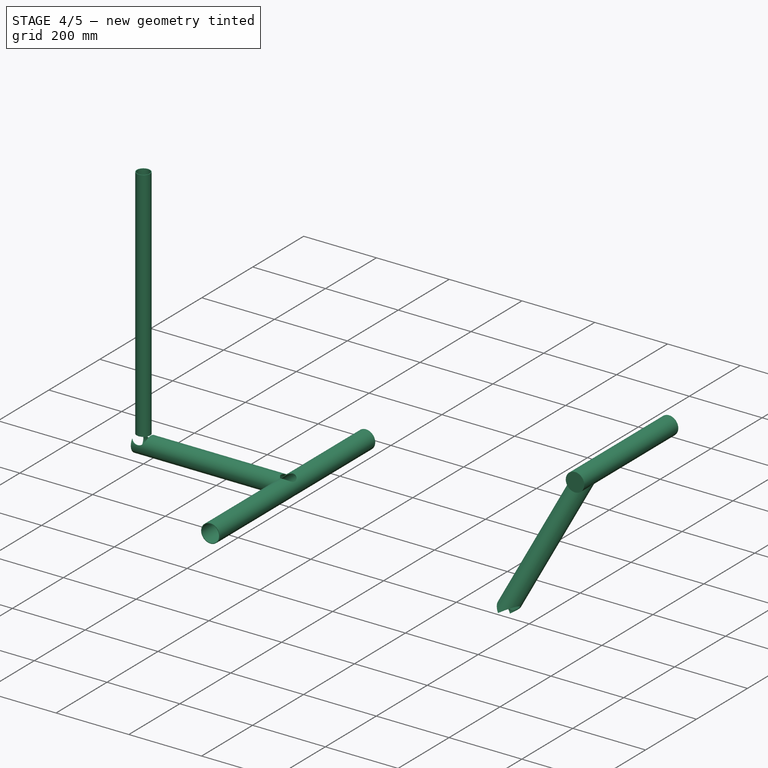
[diagram: stage 4 of 5 — iso view after this stage's code; geometry added in this stage tinted green]
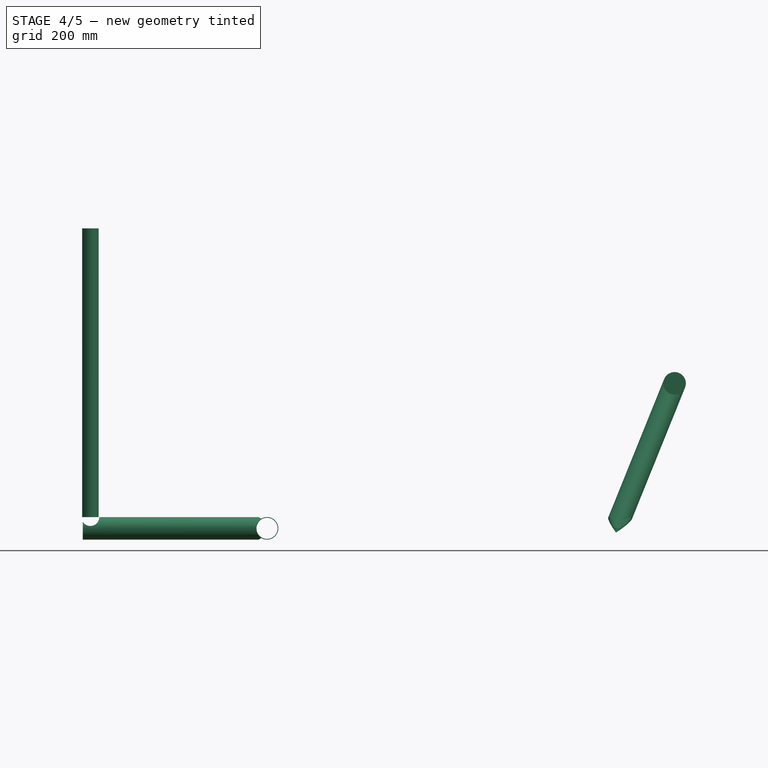
[diagram: stage 4 of 5 — front view after this stage's code; geometry added in this stage tinted green]
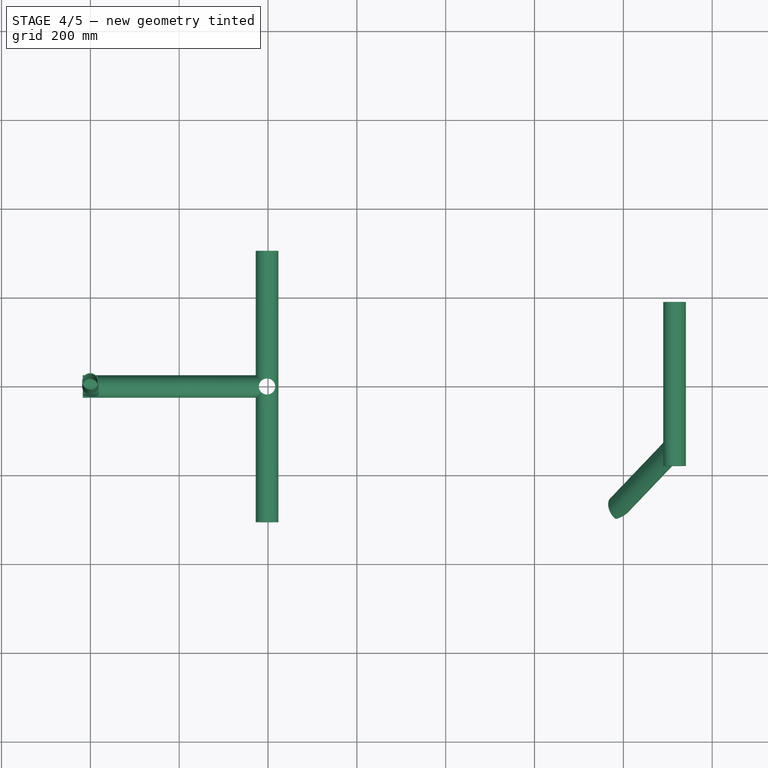
[diagram: stage 4 of 5 — top view after this stage's code; geometry added in this stage tinted green]
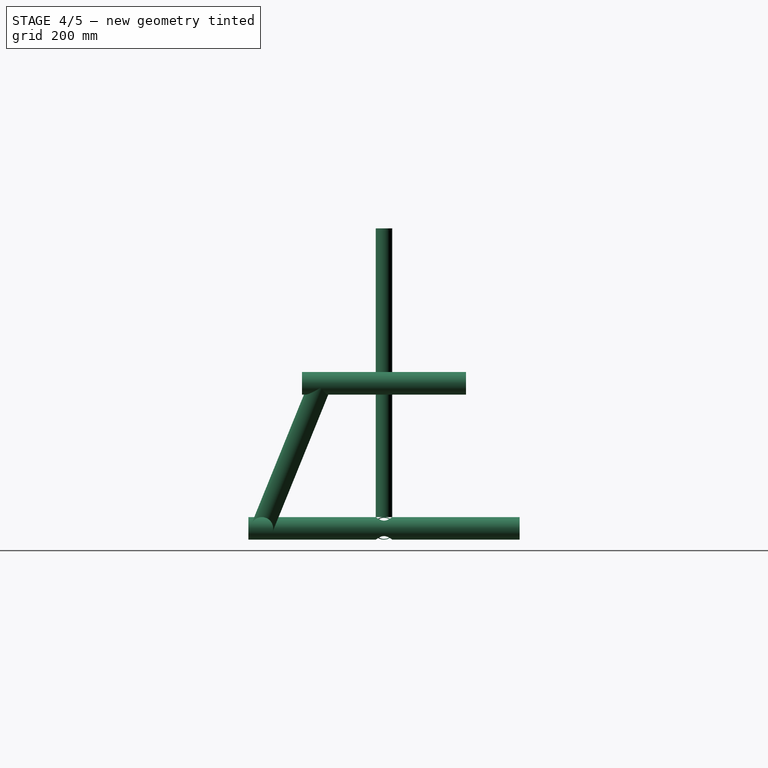
[diagram: stage 4 of 5 — right view after this stage's code; geometry added in this stage tinted green]
FEATURE [Sketcher::SketchObject] Sketch010
  MapMode = 5
  Placement = pos=(0,0,0) rot=(1,0,0;1.5708rad)
  Support = -> [XZ_Plane]
  sketch-geometry (1):
    g0: Circle CenterX=0 CenterY=0 CenterZ=0 NormalX=0 NormalY=0 NormalZ=1 Radius=20
  constraints (2):
    c: Coincident(g0,g-1)
    c: Radius(g0) = 20
FEATURE [Sketcher::SketchObject] Sketch011
  ExternalGeometry = -> [Pad]
  MapMode = 5
  Placement = pos=(397.787,0,0) rot=(0.57735,0.57735,0.57735;2.0944rad)
  Support = -> [Pad]
  expr: Constraints[4] = design_params.cargo_tube_wall
  sketch-geometry (2):
    g0: Circle CenterX=0 CenterY=-25.4 CenterZ=0 NormalX=0 NormalY=0 NormalZ=1 Radius=23.7492
    g1: LineSegment StartX=23.7463 StartY=-25.7733 StartZ=0 EndX=25.3973 EndY=-25.7733 EndZ=0
  constraints (5):
    c: Coincident(g0,g-3)
    c: PointOnObject(g1,g0)
    c: PointOnObject(g1,g-3)
    c: Horizontal(g1)
    c: Distance(g1) = 1.651
FEATURE [PartDesign::Pocket] Pocket002
  BaseFeature = -> Pad
  Length = 0
  Placement = pos=(0,0,0) rot=(0.57735,0.57735,0.57735;2.0944rad)
  Profile = -> Sketch011
  Type = 1
FEATURE [PartDesign::Pocket] Pocket003
  BaseFeature = -> Pocket002
  Length = 5
  Midplane = true
  Placement = pos=(0,0,0) rot=(0.57735,0.57735,0.57735;2.0944rad)
  Profile = -> Sketch010
  Type = 1
FEATURE [Sketcher::SketchObject] Sketch016
  MapMode = 5
  Support = -> [XY_Plane005]
  sketch-geometry (4):
    g0: LineSegment StartX=0 StartY=500 StartZ=0 EndX=2000 EndY=500 EndZ=0
    g1: LineSegment StartX=2000 StartY=500 StartZ=0 EndX=2000 EndY=0 EndZ=0
    g2: LineSegment StartX=2000 StartY=0 StartZ=0 EndX=0 EndY=0 EndZ=0
    g3: LineSegment StartX=0 StartY=0 StartZ=0 EndX=0 EndY=500 EndZ=0
  constraints (11):
    c: Coincident(g0,g1)
    c: Coincident(g1,g2)
    c: Coincident(g2,g3)
    c: Coincident(g3,g0)
    c: Horizontal(g0)
    c: Horizontal(g2)
    c: Vertical(g1)
    c: Vertical(g3)
    c: Coincident(g2,g-1)
    c: Distance(g3) = 500
    c: Distance(g0) = 2000
FEATURE [Sketcher::SketchObject] Sketch019
  MapMode = 5
  Placement = pos=(0,0,0) rot=(1,0,0;1.5708rad)
  Support = -> [XZ_Plane]
  expr: Constraints[2] = design_params.cargo_tube_diam / 2
  expr: Constraints[1] = Sketch001.Constraints.lower_down_tube
  sketch-geometry (1):
    g0: Circle CenterX=397.787 CenterY=-25.4 CenterZ=0 NormalX=0 NormalY=0 NormalZ=1 Radius=25.4
  constraints (3):
    c: Tangent(g0,g-1)
    c: DistanceX(g0) = 397.787
    c: Radius(g0) = 25.4
FEATURE [PartDesign::Pocket] Pocket008
  BaseFeature = -> Pocket003
  Length = 5
  Midplane = true
  Placement = pos=(0,0,0) rot=(0.57735,0.57735,0.57735;2.0944rad)
  Profile = -> Sketch019
  Type = 1
FEATURE [Sketcher::SketchObject] Sketch020
  MapMode = 5
  Support = -> [XY_Plane]
  expr: Constraints[1] = design_params.rear_head_tube_od / 2
  expr: Constraints[2] = Sketch001.Constraints.lower_down_tube
  sketch-geometry (1):
    g0: Circle CenterX=397.787 CenterY=0 CenterZ=0 NormalX=0 NormalY=0 NormalZ=1 Radius=18.5
  constraints (3):
    c: PointOnObject(g0,g-1)
    c: Radius(g0) = 18.5
    c: DistanceX(g0) = 397.787
FEATURE [PartDesign::Pocket] Pocket009
  BaseFeature = -> Pocket008
  Length = 5
  Placement = pos=(0,0,0) rot=(0.57735,0.57735,0.57735;2.0944rad)
  Profile = -> Sketch020
  Type = 1
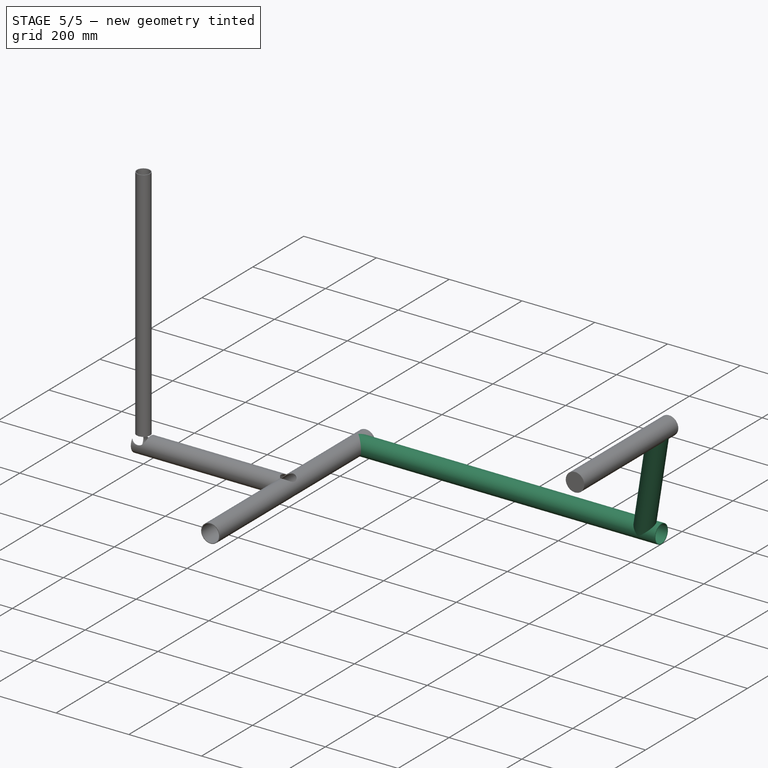
[diagram: stage 5 of 5 — iso view after this stage's code; geometry added in this stage tinted green]
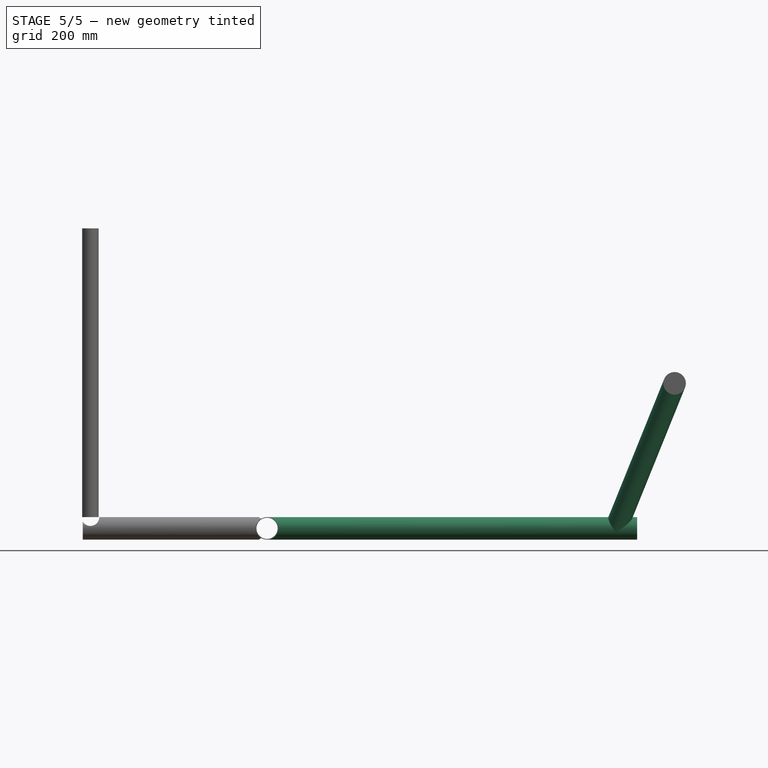
[diagram: stage 5 of 5 — front view after this stage's code; geometry added in this stage tinted green]
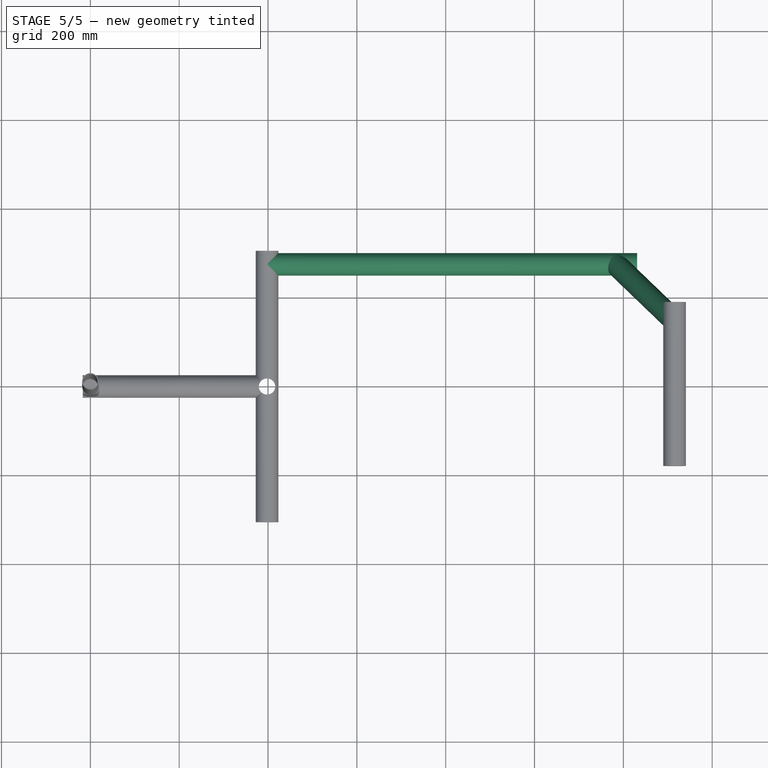
[diagram: stage 5 of 5 — top view after this stage's code; geometry added in this stage tinted green]
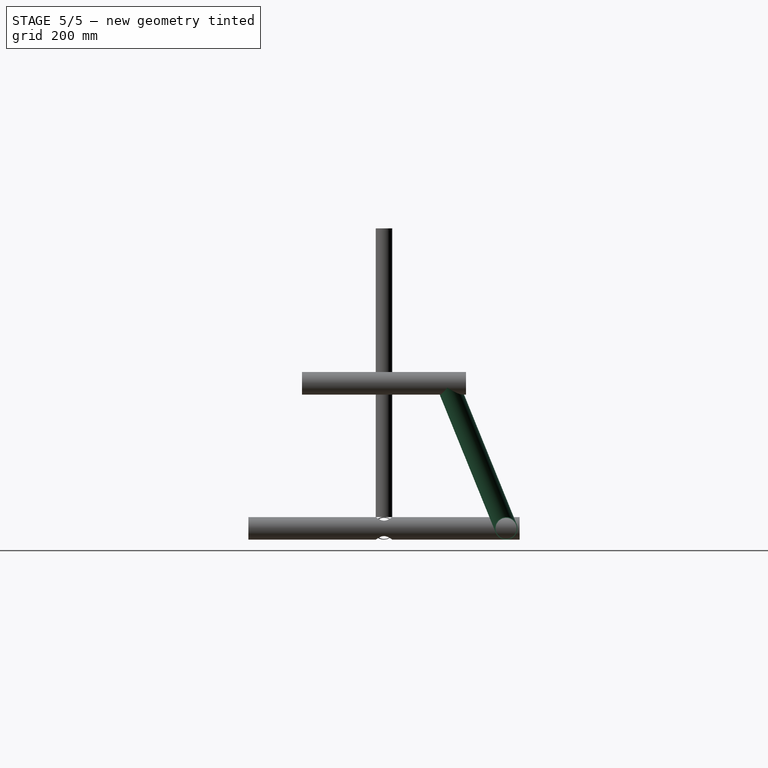
[diagram: stage 5 of 5 — right view after this stage's code; geometry added in this stage tinted green]
FEATURE [Sketcher::SketchObject] Sketch004
  MapMode = 5
  Placement = pos=(0,0,0) rot=(0.57735,0.57735,0.57735;2.0944rad)
  Support = -> [YZ_Plane002]
  expr: Constraints[2] = -design_params.cargo_width_c2c / 2
  expr: Constraints[1] = design_params.cargo_tube_diam / 2
  sketch-geometry (1):
    g0: Circle CenterX=-275 CenterY=-25.4 CenterZ=0 NormalX=0 NormalY=0 NormalZ=1 Radius=25.4
  constraints (3):
    c: Tangent(g0,g-1)
    c: Radius(g0) = 25.4
    c: DistanceX(g0) = -275
FEATURE [PartDesign::Pad] Pad002
  Length = 833.29
  Length2 = 100
  Placement = pos=(0,0,0) rot=(0.57735,0.57735,0.57735;2.0944rad)
  Profile = -> Sketch004
  Type = 0
  expr: Length = Sketch001.Constraints.cargo_side_tubes
FEATURE [Sketcher::SketchObject] Sketch012
  MapMode = 5
  Placement = pos=(0,0,0) rot=(1,0,0;1.5708rad)
  Support = -> [XZ_Plane002]
  expr: Constraints[2] = design_params.cargo_tube_diam / 2
  sketch-geometry (1):
    g0: Circle CenterX=0 CenterY=-25.4 CenterZ=0 NormalX=0 NormalY=0 NormalZ=1 Radius=25.4
  constraints (3):
    c: PointOnObject(g0,g-2)
    c: Tangent(g0,g-1)
    c: Radius(g0) = 25.4
FEATURE [Sketcher::SketchObject] Sketch013
  ExternalGeometry = -> [Pad002]
  MapMode = 5
  Placement = pos=(0,0,0) rot=(0.57735,0.57735,-0.57735;4.18879rad)
  Support = -> [Pad002]
  expr: Constraints[1] = design_params.cargo_tube_diam / 2 - design_params.cargo_tube_wall
  sketch-geometry (1):
    g0: Circle CenterX=-275 CenterY=25.4 CenterZ=0 NormalX=0 NormalY=0 NormalZ=1 Radius=23.749
  constraints (2):
    c: Coincident(g0,g-3)
    c: Radius(g0) = 23.749
FEATURE [PartDesign::Pocket] Pocket004
  BaseFeature = -> Pad002
  Length = 5
  Placement = pos=(0,0,0) rot=(0.57735,0.57735,0.57735;2.0944rad)
  Profile = -> Sketch013
  Type = 1
FEATURE [PartDesign::Pocket] Pocket005
  BaseFeature = -> Pocket004
  Length = 5
  Midplane = true
  Placement = pos=(0,0,0) rot=(0.57735,0.57735,0.57735;2.0944rad)
  Profile = -> Sketch012
  Type = 1
FEATURE [PartDesign::Body] Body002  label="cargo_side_tube_r"
  Group = -> [Sketch004,Pad002,Sketch012,Sketch013,Pocket004,Pocket005]
  Origin = -> Body002Origin
  Placement = pos=(397.787,0,0) rot=(0,0,1;0rad)
  Tip = -> Pocket005
  expr: Placement.Base.x = Sketch001.Constraints.lower_down_tube
FEATURE [Part::Mirroring] Part__Mirroring  label="cargo_side_tube_l"
  Base = (0,0,0)
  Normal = (0,1,0)
  Source = -> Body002
FEATURE [PartDesign::Body] Body005  label="cargo_front_tube_r"
  Group = -> [DatumPlane001,Sketch015,Pad005,Sketch016,Sketch025,Pocket013,DatumPlane,Sketch018,Sketch023,Sketch024,DatumLine001,Pocket014,DatumPlane002,DatumPlane004,Sketch028,Pocket,Sketch030,Pocket017]
  Origin = -> Body005Origin
  Tip = -> Pocket017
FEATURE [Part::Mirroring] Part__Mirroring001  label="cargo_front_tube_l"
  Base = (1215.94,3.05176e-05,217.468)
  Normal = (0,1,-1.19209e-07)
  Source = -> Body005
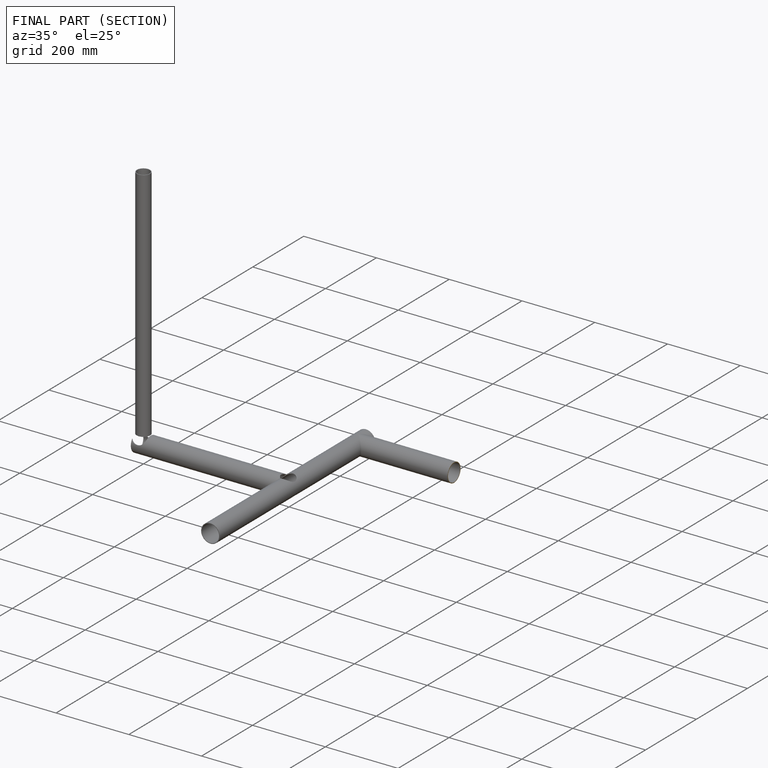
[diagram: finished part — half-section view (interior)]
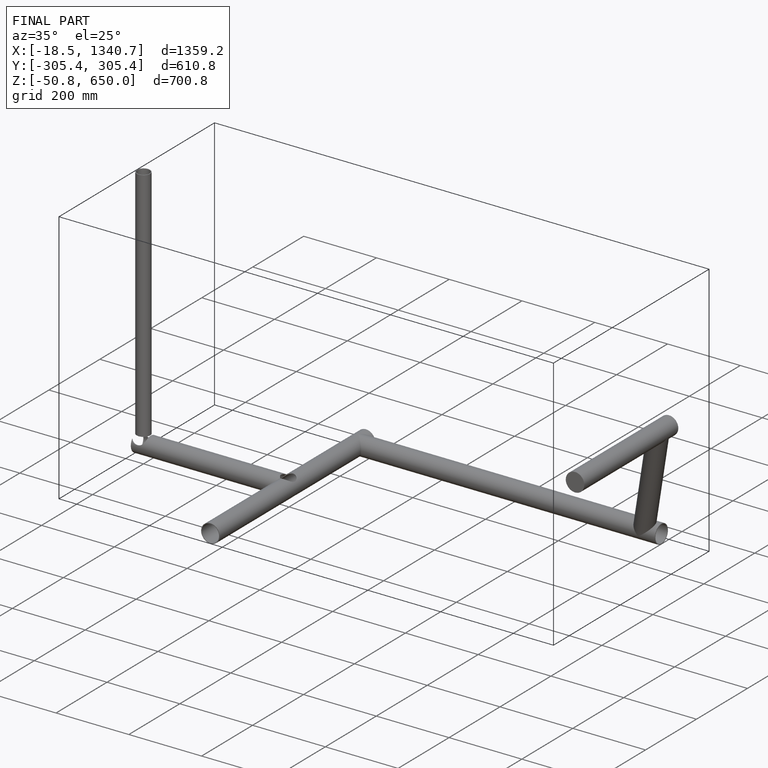
[diagram: finished part — iso view with bounding-box wireframe]
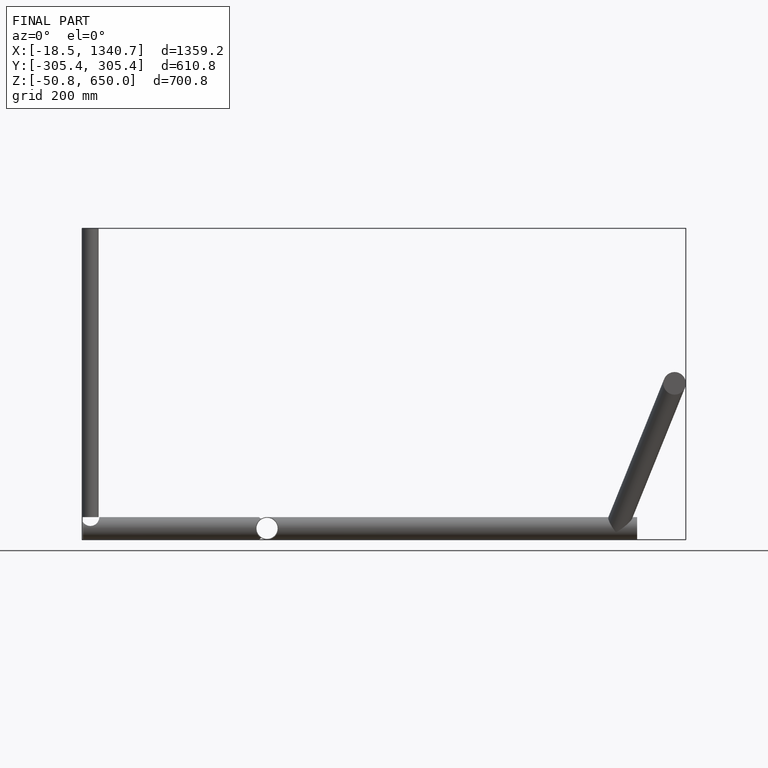
[diagram: finished part — front view with bounding-box wireframe]
